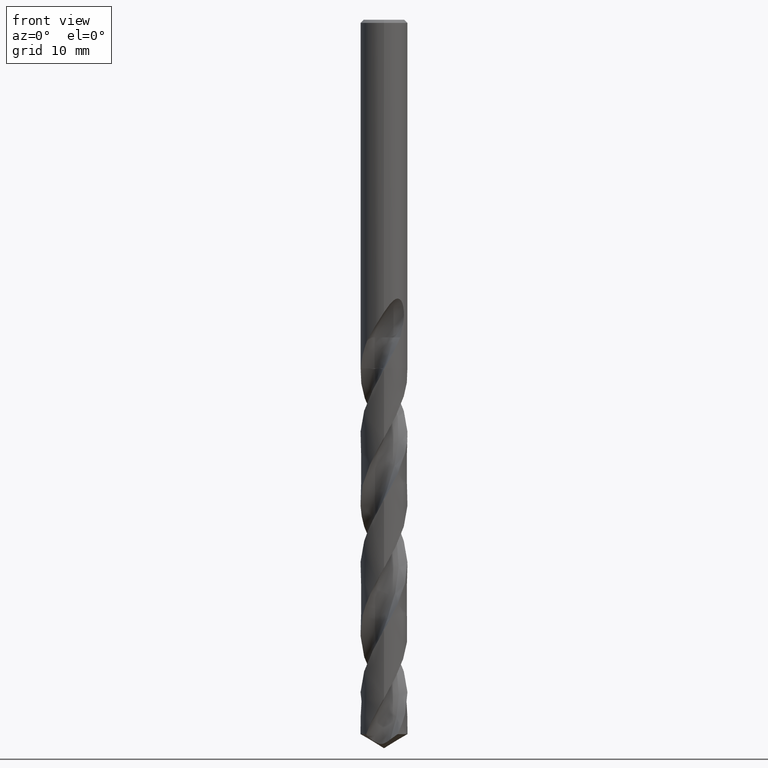
[diagram: clean part render]
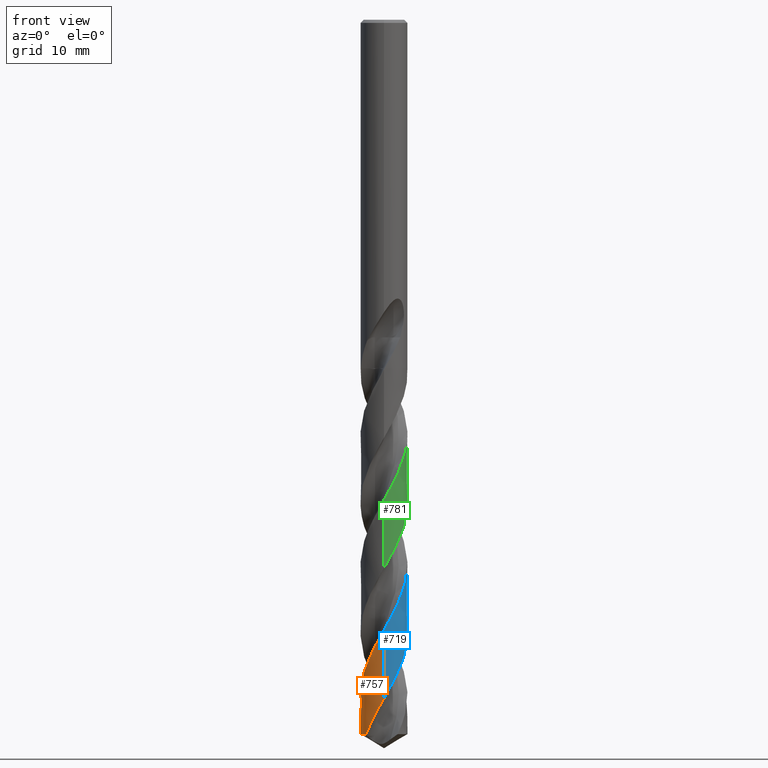
[diagram: same view with three faces highlighted in distinct colors, each labeled with its STEP entity id]
A machine part, front view with three faces highlighted in distinct colors.
Their STEP definitions:

[orange] entity #757 — the highlighted conical surface has half-angle 0 deg.
#291=VERTEX_POINT('',#814);
#301=EDGE_CURVE('',#321,#291,#825,.T.);
#321=VERTEX_POINT('',#847);
#349=VERTEX_POINT('',#878);
#363=EDGE_CURVE('',#707,#349,#892,.T.);
#367=EDGE_CURVE('',#291,#707,#896,.T.);
#423=EDGE_CURVE('',#321,#349,#957,.T.);
#707=VERTEX_POINT('',#1267);
#757=ADVANCED_FACE('',(#1320),#1321,.T.);
#814=CARTESIAN_POINT('',(1.2618426369891E-014,-2.99999024545571,-86.6422978092663));
#825=B_SPLINE_CURVE_WITH_KNOTS('',3,(#1593,#1594,#1595,#1596,#1597,#1598,#1599,#1600,#1601,#1602,#1603,#1604,#1605,#1606,#1607,#1608,#1609,#1610,#1611,#1612,#1613,#1614,#1615,#1616,#1617,#1618,#1619,#1620,#1621,#1622,#1623,#1624,#1625,#1626,#1627,#1628,#1629,#1630,#1631,#1632,#1633,#1634,#1635,#1636,#1637,#1638,#1639,#1640,#1641,#1642,#1643,#1644,#1645,#1646,#1647,#1648,#1649,#1650,#1651,#1652,#1653,#1654,#1655,#1656,#1657,#1658,#1659,#1660,#1661,#1662,#1663,#1664,#1665,#1666,#1667,#1668,#1669,#1670,#1671,#1672,#1673,#1674,#1675,#1676,#1677,#1678,#1679,#1680,#1681,#1682,#1683,#1684,#1685,#1686,#1687,#1688,#1689,#1690,#1691,#1692,#1693,#1694,#1695,#1696,#1697,#1698,#1699,#1700,#1701,#1702,#1703,#1704,#1705,#1706,#1707,#1708,#1709,#1710,#1711,#1712,#1713,#1714,#1715,#1716,#1717,#1718,#1719,#1720,#1721,#1722,#1723,#1724,#1725,#1726),.UNSPECIFIED.,.F.,.F.,(4,2,2,2,2,2,2,2,2,2,2,2,2,2,2,2,2,2,2,2,2,2,2,2,2,2,2,2,2,2,2,2,2,2,2,2,2,2,2,2,2,2,2,2,2,2,2,2,2,2,2,2,2,2,2,2,2,2,2,2,2,2,2,2,2,2,4),(0.0,3.02287721296994,4.21114467021748,5.40240542066158,5.63296285372694,6.56440019589008,7.03474323955983,7.96315386712662,8.90089101398831,9.82895467513808,10.7660359664793,11.6950607056237,12.631945266915,13.5608758300139,14.5002427450908,15.4360616190623,16.6231814625273,16.8760876727705,17.8238277513194,18.3510460297783,18.9392733809753,19.8728332224421,20.8111572759699,21.7456357262974,22.2158961574194,22.6786553579531,23.6122961418892,24.0824937946697,24.5458263259938,25.4793670431507,25.9495354147065,26.4130872779721,27.5339568556651,28.7198058053208,29.8415531454188,30.0906759770693,31.0059853105386,31.5394365860536,32.1272591931828,33.0610297525395,33.9991628109772,35.1830137693833,35.7756897684473,36.6661043010927,37.0818333460252,37.6751033829964,38.6422797246763,39.8384259271219,40.778204453477,41.0130611872121,41.4784119618527,42.4147223439251,42.886658241528,43.3526864069196,44.2893694783272,44.7615495460575,45.2280111571871,46.1649001621193,46.6374993824772,47.0738093275252,48.7124889861513,49.0209012430013,50.186497850839,51.0617569269761,52.3795618912654,53.0374232562179,53.6981954485594),.UNSPECIFIED.);
#847=CARTESIAN_POINT('',(-2.2745125000903,-1.95616790867578,-91.1974181429173));
#878=CARTESIAN_POINT('',(-1.75616763038386,2.4322572343385,-91.1974181429173));
#892=B_SPLINE_CURVE_WITH_KNOTS('',3,(#2438,#2439,#2440,#2441,#2442,#2443,#2444,#2445,#2446,#2447,#2448,#2449,#2450,#2451,#2452,#2453,#2454,#2455,#2456,#2457,#2458,#2459,#2460,#2461,#2462,#2463,#2464,#2465,#2466,#2467,#2468,#2469,#2470,#2471,#2472,#2473,#2474,#2475,#2476,#2477,#2478,#2479,#2480,#2481,#2482,#2483,#2484,#2485,#2486,#2487,#2488,#2489,#2490,#2491,#2492,#2493,#2494,#2495,#2496,#2497,#2498,#2499,#2500,#2501,#2502,#2503,#2504,#2505,#2506,#2507,#2508,#2509,#2510,#2511,#2512,#2513,#2514,#2515,#2516,#2517,#2518,#2519,#2520,#2521,#2522,#2523,#2524,#2525,#2526,#2527,#2528,#2529,#2530,#2531,#2532,#2533,#2534,#2535,#2536,#2537,#2538,#2539,#2540,#2541,#2542,#2543,#2544,#2545,#2546,#2547,#2548,#2549),.UNSPECIFIED.,.F.,.F.,(4,2,2,2,2,2,2,2,2,2,2,2,2,2,2,2,2,2,2,2,2,2,2,2,2,2,2,2,2,2,2,2,2,2,2,2,2,2,2,2,2,2,2,2,2,2,2,2,2,2,2,2,2,2,2,4),(0.0,0.572494951152707,1.82359099831798,2.42255770686829,3.60222100303684,4.78284834429973,5.07257895236111,6.43743892157829,7.27309732185476,8.44766006449398,8.80126584029502,10.0867639013919,10.7114238461187,12.0609049505879,12.9256424530708,14.0990840418294,14.4568972499805,15.7524060030587,16.3768444194908,17.7456139895091,18.569437081234,19.8211434650161,20.1249415870753,21.4607621806897,22.3509296458092,23.5237657369338,23.8825393806491,25.1924762545247,26.1441114138911,27.3190172650189,27.6638680734478,28.9837452938752,29.9097926997169,31.0848422913952,31.4282569765491,32.7359192072244,33.6884426389131,34.8641982923497,35.2033986836679,36.5301467078713,37.4343337735823,38.6080877867294,38.9582932874796,40.2783048428231,41.1973656489372,42.370246603382,42.7242071821576,44.0547000523769,44.9520049179204,46.0193016687821,46.8324724202903,47.6769222201255,48.4202173883978,49.7105220906753,50.687798315683,53.6638566153916),.UNSPECIFIED.);
#896=LINE('',#2556,#2557);
#957=CIRCLE('',#2907,3.0);
#1267=CARTESIAN_POINT('',(-4.91099749483942E-014,-2.99997147817592,-77.8784626881378));
#1320=FACE_OUTER_BOUND('',#10861,.T.);
#1321=CONICAL_SURFACE('',#10862,2.99995,2.14144601515245E-006);
#1593=CARTESIAN_POINT('',(-2.2745125000903,-1.95616790867578,-91.1974181429173));
#1594=CARTESIAN_POINT('',(-1.95178560596143,-2.33141213640575,-90.3197230087452));
#1595=CARTESIAN_POINT('',(-1.53969526783145,-2.62238588949372,-89.4596208159763));
#1596=CARTESIAN_POINT('',(-0.892558034563966,-2.87081177026189,-88.2378946293295));
#1597=CARTESIAN_POINT('',(-0.703657284085744,-2.92285292961938,-87.8920142145285));
#1598=CARTESIAN_POINT('',(-0.317758190417511,-2.98955123881705,-87.2016638900008));
#1599=CARTESIAN_POINT('',(-0.122025472159106,-3.00387620638499,-86.8583939374221));
#1600=CARTESIAN_POINT('',(0.111235675559772,-2.99816563050771,-86.4455591549712));
#1601=CARTESIAN_POINT('',(0.1490255622857,-2.99652575046484,-86.3785616721402));
#1602=CARTESIAN_POINT('',(0.339714468065122,-2.98462442749514,-86.0407150511399));
#1603=CARTESIAN_POINT('',(0.491818072927911,-2.96338232213848,-85.77109820719));
#1604=CARTESIAN_POINT('',(0.717611327020993,-2.91392760903974,-85.3639747563611));
#1605=CARTESIAN_POINT('',(0.792641346692021,-2.89441518264631,-85.2274930839328));
#1606=CARTESIAN_POINT('',(1.01310531374222,-2.82787885764705,-84.8210452248151));
#1607=CARTESIAN_POINT('',(1.15591881506762,-2.77257917261038,-84.550392715063));
#1608=CARTESIAN_POINT('',(1.43349338328039,-2.63986863531309,-84.0080459707319));
#1609=CARTESIAN_POINT('',(1.56754598463146,-2.56252965061124,-83.7366688610894));
#1610=CARTESIAN_POINT('',(1.82110034047704,-2.38890259090467,-83.1942947418631));
#1611=CARTESIAN_POINT('',(1.94047114784917,-2.29300815854351,-82.9236039126752));
#1612=CARTESIAN_POINT('',(2.16482255188089,-2.08262056047796,-82.3813469425078));
#1613=CARTESIAN_POINT('',(2.26916900063692,-1.96840028833672,-82.1100627124344));
#1614=CARTESIAN_POINT('',(2.45846001470462,-1.72606106236026,-81.5674514232199));
#1615=CARTESIAN_POINT('',(2.54333611945071,-1.5983728439718,-81.2964404579847));
#1616=CARTESIAN_POINT('',(2.69359374226667,-1.3297740964844,-80.7538414594659));
#1617=CARTESIAN_POINT('',(2.758480575797,-1.18932467537036,-80.4825526526441));
#1618=CARTESIAN_POINT('',(2.86555938114127,-0.901036932518029,-79.9399033574441));
#1619=CARTESIAN_POINT('',(2.90780602106788,-0.753654816602461,-79.6688318523229));
#1620=CARTESIAN_POINT('',(2.9698073224346,-0.451773687279588,-79.1254221626251));
#1621=CARTESIAN_POINT('',(2.98916713117835,-0.297836186707623,-78.8533697339948));
#1622=CARTESIAN_POINT('',(3.00391716761112,0.0109694976118981,-78.3079179353158));
#1623=CARTESIAN_POINT('',(2.99938551361731,0.165388839251145,-78.0348147122006));
#1624=CARTESIAN_POINT('',(2.9621532017061,0.513641826925592,-77.4172678386263));
#1625=CARTESIAN_POINT('',(2.92233379282429,0.705672109264574,-77.07426249514));
#1626=CARTESIAN_POINT('',(2.85182846225858,0.931998320202102,-76.6551310915076));
#1627=CARTESIAN_POINT('',(2.83863689581399,0.971433552678967,-76.5814669048239));
#1628=CARTESIAN_POINT('',(2.77211080992551,1.15737155345235,-76.2321594885449));
#1629=CARTESIAN_POINT('',(2.70816348347563,1.3000402958253,-75.9576977722559));
#1630=CARTESIAN_POINT('',(2.59157344078178,1.51364198393976,-75.5290847557303));
#1631=CARTESIAN_POINT('',(2.54663624264424,1.58807391969179,-75.3760542311678));
#1632=CARTESIAN_POINT('',(2.44496754745683,1.74106577119609,-75.051720775165));
#1633=CARTESIAN_POINT('',(2.38753937047548,1.81901669528032,-74.880251694196));
#1634=CARTESIAN_POINT('',(2.2293785758234,2.01327374978109,-74.4378025325311));
#1635=CARTESIAN_POINT('',(2.12326101796361,2.12491011580457,-74.1675793937668));
#1636=CARTESIAN_POINT('',(1.89401390523807,2.33161471808919,-73.6237306284721));
#1637=CARTESIAN_POINT('',(1.77137008897761,2.42607379171058,-73.3504067249925));
#1638=CARTESIAN_POINT('',(1.51360615781109,2.594683147514,-72.8064040898197));
#1639=CARTESIAN_POINT('',(1.3786119272195,2.66887460248963,-72.5361649192608));
#1640=CARTESIAN_POINT('',(1.16781944431896,2.76440864902976,-72.1284085074098));
#1641=CARTESIAN_POINT('',(1.09612249640248,2.79360757885731,-71.9920124368212));
#1642=CARTESIAN_POINT('',(0.951964906723855,2.84592657701403,-71.7209800556707));
#1643=CARTESIAN_POINT('',(0.879560781135041,2.86913142232721,-71.5862955311079));
#1644=CARTESIAN_POINT('',(0.658314927900113,2.93086163148494,-71.1805028352192));
#1645=CARTESIAN_POINT('',(0.507301876045134,2.96075387813846,-70.9103928649009));
#1646=CARTESIAN_POINT('',(0.277544677579586,2.98809452079875,-70.5027593902531));
#1647=CARTESIAN_POINT('',(0.200347626675581,2.99425667395209,-70.3663384393298));
#1648=CARTESIAN_POINT('',(0.0469469367617418,3.00055517496339,-70.0950797481356));
#1649=CARTESIAN_POINT('',(-0.0292113364282269,3.00078051013478,-69.960189953183));
#1650=CARTESIAN_POINT('',(-0.258867501057007,2.99270697457535,-69.5542257970037));
#1651=CARTESIAN_POINT('',(-0.411849499811561,2.97552987969138,-69.2841195090557));
#1652=CARTESIAN_POINT('',(-0.639121137469132,2.93210569263099,-68.8764905102742));
#1653=CARTESIAN_POINT('',(-0.714571291446191,2.91463204601932,-68.7400670223538));
#1654=CARTESIAN_POINT('',(-0.86274261757115,2.87422974751857,-68.4687324643843));
#1655=CARTESIAN_POINT('',(-0.935433305411801,2.85140008415554,-68.3337628213733));
#1656=CARTESIAN_POINT('',(-1.18087611709063,2.76391230695421,-67.8733368026908));
#1657=CARTESIAN_POINT('',(-1.34855780949059,2.686107873499,-67.5496701236268));
#1658=CARTESIAN_POINT('',(-1.67701095245331,2.49509041033969,-66.8798476253014));
#1659=CARTESIAN_POINT('',(-1.83581061075107,2.38068358405796,-66.5344468040452));
#1660=CARTESIAN_POINT('',(-2.12115737197942,2.12944182089693,-65.8644043577988));
#1661=CARTESIAN_POINT('',(-2.2480919734588,1.99492239023331,-65.540613908766));
#1662=CARTESIAN_POINT('',(-2.38696561361708,1.81761807671336,-65.1422306511599));
#1663=CARTESIAN_POINT('',(-2.41152418429163,1.78490746535764,-65.0697770922771));
#1664=CARTESIAN_POINT('',(-2.52336186488482,1.62940893067432,-64.7310992338156));
#1665=CARTESIAN_POINT('',(-2.60206391421853,1.50057217018937,-64.4660242630509));
#1666=CARTESIAN_POINT('',(-2.71089402009682,1.28780748134161,-64.0450963671035));
#1667=CARTESIAN_POINT('',(-2.74746147130461,1.20781536304006,-63.8902865681784));
#1668=CARTESIAN_POINT('',(-2.81677535348296,1.03671952916278,-63.5643054270893));
#1669=CARTESIAN_POINT('',(-2.84871986076667,0.945410349017062,-63.3929815577014));
#1670=CARTESIAN_POINT('',(-2.91990719162781,0.705269659902636,-62.9506175031248));
#1671=CARTESIAN_POINT('',(-2.95223757784712,0.55464656002544,-62.6803509129344));
#1672=CARTESIAN_POINT('',(-2.99360392363824,0.24877722010194,-62.1365155685419));
#1673=CARTESIAN_POINT('',(-3.00242330329185,0.0942720127808011,-61.8632341178398));
#1674=CARTESIAN_POINT('',(-2.9954411913862,-0.254682388327446,-61.2468497150017));
#1675=CARTESIAN_POINT('',(-2.97260220644448,-0.448562174726724,-60.9053626551698));
#1676=CARTESIAN_POINT('',(-2.91033034513717,-0.734231438428128,-60.3895472033861));
#1677=CARTESIAN_POINT('',(-2.88494563077882,-0.828342904621943,-60.2170348618131));
#1678=CARTESIAN_POINT('',(-2.81022520630349,-1.0599932963866,-59.7867431917635));
#1679=CARTESIAN_POINT('',(-2.75520726010955,-1.19578224291091,-59.529455529466));
#1680=CARTESIAN_POINT('',(-2.66011842258074,-1.38853817873677,-59.1508794721567));
#1681=CARTESIAN_POINT('',(-2.62778176771597,-1.4487988518771,-59.0304665566483));
#1682=CARTESIAN_POINT('',(-2.54442895160995,-1.59215938391091,-58.7378995617503));
#1683=CARTESIAN_POINT('',(-2.49140099012613,-1.67390667813199,-58.5654503968117));
#1684=CARTESIAN_POINT('',(-2.34190938703096,-1.8815370899159,-58.1132689732915));
#1685=CARTESIAN_POINT('',(-2.23909559173539,-2.00281973332997,-57.8343269380421));
#1686=CARTESIAN_POINT('',(-1.98838117880239,-2.25489389930031,-57.2080241754698));
#1687=CARTESIAN_POINT('',(-1.8365134795006,-2.38019535406246,-56.8607409717002));
#1688=CARTESIAN_POINT('',(-1.54552685937294,-2.5757902729414,-56.2422478028497));
#1689=CARTESIAN_POINT('',(-1.41104432970709,-2.65184975139105,-55.9713097061598));
#1690=CARTESIAN_POINT('',(-1.23636700585574,-2.73357392512068,-55.6312303056668));
#1691=CARTESIAN_POINT('',(-1.20115353787944,-2.74922809379139,-55.5632399056382));
#1692=CARTESIAN_POINT('',(-1.09536941306201,-2.79383729842846,-55.3604292782384));
#1693=CARTESIAN_POINT('',(-1.02404285911378,-2.82076065033282,-55.2253783474635));
#1694=CARTESIAN_POINT('',(-0.806189827659885,-2.89363755091523,-54.8194365550382));
#1695=CARTESIAN_POINT('',(-0.656990418962257,-2.93113405943032,-54.5494698968214));
#1696=CARTESIAN_POINT('',(-0.428976840038243,-2.97010306235834,-54.1419790453732));
#1697=CARTESIAN_POINT('',(-0.352162125999598,-2.98018282310611,-54.0055334566882));
#1698=CARTESIAN_POINT('',(-0.199044177817516,-2.99428402585149,-53.7339510010614));
#1699=CARTESIAN_POINT('',(-0.122820126307501,-2.99837613456775,-53.5987485767403));
#1700=CARTESIAN_POINT('',(0.106920711466727,-3.00193619265881,-53.1927022686926));
#1701=CARTESIAN_POINT('',(0.260454172553408,-2.99254426891075,-52.9227631218167));
#1702=CARTESIAN_POINT('',(0.489559375324705,-2.9607168490958,-52.5152992095199));
#1703=CARTESIAN_POINT('',(0.565826373211781,-2.94708802338331,-52.3788523579234));
#1704=CARTESIAN_POINT('',(0.716071963014651,-2.91420326030498,-52.1072119287157));
#1705=CARTESIAN_POINT('',(0.789987901155131,-2.89503755193183,-51.9719473415658));
#1706=CARTESIAN_POINT('',(1.00993655652582,-2.8289621307909,-51.5659907788772));
#1707=CARTESIAN_POINT('',(1.15335156500594,-2.7736066484394,-51.296174634524));
#1708=CARTESIAN_POINT('',(1.36204795874819,-2.67400809222265,-50.8888365429373));
#1709=CARTESIAN_POINT('',(1.43063920154692,-2.63794272559087,-50.7523740830075));
#1710=CARTESIAN_POINT('',(1.55960912265636,-2.56363058379802,-50.4895487740413));
#1711=CARTESIAN_POINT('',(1.62014564800459,-2.52580431448955,-50.3631468698505));
#1712=CARTESIAN_POINT('',(1.90113947730164,-2.33599024989963,-49.7636003759024));
#1713=CARTESIAN_POINT('',(2.10185948794459,-2.15714021659507,-49.2962535003256));
#1714=CARTESIAN_POINT('',(2.30897078953441,-1.91589267062581,-48.7338128860584));
#1715=CARTESIAN_POINT('',(2.34080271099582,-1.87687047234585,-48.6446177852835));
#1716=CARTESIAN_POINT('',(2.48849633934738,-1.68618250427258,-48.218297539531));
#1717=CARTESIAN_POINT('',(2.59072877494663,-1.52448953310956,-47.8834480187254));
#1718=CARTESIAN_POINT('',(2.74170985233033,-1.22598710594778,-47.2936554824876));
#1719=CARTESIAN_POINT('',(2.79712617915742,-1.09363535583101,-47.0398871786325));
#1720=CARTESIAN_POINT('',(2.9117327242361,-0.753494945270664,-46.4061964248808));
#1721=CARTESIAN_POINT('',(2.95834236118653,-0.542327695635232,-46.0286662701702));
#1722=CARTESIAN_POINT('',(2.99368502281006,-0.221015618156673,-45.4579001447945));
#1723=CARTESIAN_POINT('',(2.99969363139984,-0.113415332898901,-45.2672851045591));
#1724=CARTESIAN_POINT('',(3.00009912307629,0.102607447198567,-44.8861661180025));
#1725=CARTESIAN_POINT('',(2.99444439845376,0.210809903223023,-44.6957485249234));
#1726=CARTESIAN_POINT('',(2.9829414791003,0.318528186484346,-44.5049284621469));
#2438=CARTESIAN_POINT('',(0.0649300444789005,-2.99919725219845,-44.5045353086641));
#2439=CARTESIAN_POINT('',(-0.0291366412246599,-3.00123407076454,-44.6705594900331));
#2440=CARTESIAN_POINT('',(-0.12326982780239,-2.99884489596037,-44.8363290979392));
#2441=CARTESIAN_POINT('',(-0.422342480712789,-2.97713948016446,-45.3651339047704));
#2442=CARTESIAN_POINT('',(-0.625365675342284,-2.94118751072104,-45.7271818577968));
#2443=CARTESIAN_POINT('',(-0.917659461616805,-2.85779771713864,-46.2637921775887));
#2444=CARTESIAN_POINT('',(-1.01093239046492,-2.82615213246614,-46.4374081822014));
#2445=CARTESIAN_POINT('',(-1.28286103031856,-2.71869569538977,-46.9532030020624));
#2446=CARTESIAN_POINT('',(-1.45583482405879,-2.63012345582889,-47.294294867902));
#2447=CARTESIAN_POINT('',(-1.78231989539191,-2.42082846209379,-47.9788950476781));
#2448=CARTESIAN_POINT('',(-1.93514694408967,-2.30050819022834,-48.3204451683174));
#2449=CARTESIAN_POINT('',(-2.1097194604502,-2.13326222749149,-48.746818008145));
#2450=CARTESIAN_POINT('',(-2.14331945865105,-2.09950107869454,-48.8308109317923));
#2451=CARTESIAN_POINT('',(-2.33050321317704,-1.90224454527102,-49.3107079115169));
#2452=CARTESIAN_POINT('',(-2.46621806011135,-1.7226729986545,-49.7056965205531));
#2453=CARTESIAN_POINT('',(-2.65071334930758,-1.41140883451902,-50.3438870202412));
#2454=CARTESIAN_POINT('',(-2.71254937251319,-1.28856935818739,-50.5859125924135));
#2455=CARTESIAN_POINT('',(-2.84049915580385,-0.984024161167544,-51.1690503949402));
#2456=CARTESIAN_POINT('',(-2.89793967383443,-0.799214117447382,-51.5089733148328));
#2457=CARTESIAN_POINT('',(-2.94904809707126,-0.553165769206899,-51.9521699091078));
#2458=CARTESIAN_POINT('',(-2.95921363076621,-0.495914011193925,-52.0546637877826));
#2459=CARTESIAN_POINT('',(-2.99859216089477,-0.229357345923392,-52.5301267056299));
#2460=CARTESIAN_POINT('',(-3.00730558662231,-0.0175771987422138,-52.9023940534889));
#2461=CARTESIAN_POINT('',(-2.98705835909521,0.295887532128459,-53.4564741177139));
#2462=CARTESIAN_POINT('',(-2.97517781658348,0.397969991871847,-53.637422060241));
#2463=CARTESIAN_POINT('',(-2.92117021068441,0.717988385267479,-54.2101344331919));
#2464=CARTESIAN_POINT('',(-2.8600867366357,0.932038849498033,-54.6008065789413));
#2465=CARTESIAN_POINT('',(-2.72201026226784,1.26902569431733,-55.2431286318788));
#2466=CARTESIAN_POINT('',(-2.65881339646229,1.39658668071223,-55.4935986790422));
#2467=CARTESIAN_POINT('',(-2.48916883332339,1.68546357370724,-56.0849952321074));
#2468=CARTESIAN_POINT('',(-2.37565103555231,1.84203419065038,-56.4246885554352));
#2469=CARTESIAN_POINT('',(-2.20885457833111,2.03075954112504,-56.8688918561097));
#2470=CARTESIAN_POINT('',(-2.16859865770184,2.07369276688763,-56.9726299539576));
#2471=CARTESIAN_POINT('',(-1.97689970523271,2.26645350791506,-57.4523360463122));
#2472=CARTESIAN_POINT('',(-1.81099002280168,2.40110317924891,-57.8275740341686));
#2473=CARTESIAN_POINT('',(-1.54601557329158,2.572929111683,-58.3846297932181));
#2474=CARTESIAN_POINT('',(-1.45704018690636,2.6243395199188,-58.5655601839334));
#2475=CARTESIAN_POINT('',(-1.16521264156685,2.77354047965519,-59.1439533359828));
#2476=CARTESIAN_POINT('',(-0.953852859907622,2.85315042056484,-59.5402505772832));
#2477=CARTESIAN_POINT('',(-0.60414258530806,2.94159524330468,-60.1764519648225));
#2478=CARTESIAN_POINT('',(-0.470691538406343,2.9658722587993,-60.4151663210912));
#2479=CARTESIAN_POINT('',(-0.131611491717624,3.00410371483676,-61.0175535291758));
#2480=CARTESIAN_POINT('',(0.07478721717807,3.00606624906179,-61.3798661237693));
#2481=CARTESIAN_POINT('',(0.329592375884945,2.98219546988546,-61.8312173321299));
#2482=CARTESIAN_POINT('',(0.379220756055649,2.97629164063114,-61.9193336273803));
#2483=CARTESIAN_POINT('',(0.646117585762435,2.93775929504757,-62.3951875451529));
#2484=CARTESIAN_POINT('',(0.85951623383102,2.88256422105627,-62.7820928167264));
#2485=CARTESIAN_POINT('',(1.20192212476286,2.75254048216521,-63.4280909315356));
#2486=CARTESIAN_POINT('',(1.33481154479157,2.69060389409985,-63.6859987151451));
#2487=CARTESIAN_POINT('',(1.63098685675344,2.52521834789315,-64.2848425258331));
#2488=CARTESIAN_POINT('',(1.78996950118741,2.41514263142592,-64.6245015801298));
#2489=CARTESIAN_POINT('',(1.98239927528981,2.25238601572317,-65.0689892064905));
#2490=CARTESIAN_POINT('',(2.02632950375136,2.21294766243534,-65.1730486414224));
#2491=CARTESIAN_POINT('',(2.22509157658897,2.02362811268092,-65.6574167129918));
#2492=CARTESIAN_POINT('',(2.36469209676005,1.85859496373513,-66.0369502024176));
#2493=CARTESIAN_POINT('',(2.57310897823362,1.55026420341439,-66.6933852220885));
#2494=CARTESIAN_POINT('',(2.65048684059792,1.41389599689442,-66.9690866266059));
#2495=CARTESIAN_POINT('',(2.79879391705493,1.09717113897504,-67.5864664162078));
#2496=CARTESIAN_POINT('',(2.86366559702519,0.914609472556321,-67.9267436480091));
#2497=CARTESIAN_POINT('',(2.92428076289659,0.671944834433028,-68.3678545137361));
#2498=CARTESIAN_POINT('',(2.93646632217647,0.616516224847198,-68.4678962273131));
#2499=CARTESIAN_POINT('',(2.98766336375222,0.347466573572886,-68.9511867363714));
#2500=CARTESIAN_POINT('',(3.00498362277942,0.130316883992322,-69.3336346271559));
#2501=CARTESIAN_POINT('',(2.99428670774442,-0.239174766666741,-69.9856270584615));
#2502=CARTESIAN_POINT('',(2.9782736656499,-0.390920317741019,-70.2539901142096));
#2503=CARTESIAN_POINT('',(2.91597996920501,-0.730859914502108,-70.864074236357));
#2504=CARTESIAN_POINT('',(2.86283783498367,-0.91723160677809,-71.2044408494906));
#2505=CARTESIAN_POINT('',(2.77141910561362,-1.14986100620558,-71.6452430035914));
#2506=CARTESIAN_POINT('',(2.74926645375104,-1.20186398961765,-71.7448830830616));
#2507=CARTESIAN_POINT('',(2.63577781920961,-1.44869898891654,-72.2242830631309));
#2508=CARTESIAN_POINT('',(2.52509765169663,-1.63400641548398,-72.6032770683854));
#2509=CARTESIAN_POINT('',(2.30113675844643,-1.93109388054646,-73.259512678173));
#2510=CARTESIAN_POINT('',(2.19710976206333,-2.04866705889346,-73.5355632978274));
#2511=CARTESIAN_POINT('',(1.94530447073938,-2.29193902131878,-74.1536353503978));
#2512=CARTESIAN_POINT('',(1.79347323994427,-2.41261402311136,-74.4942488902714));
#2513=CARTESIAN_POINT('',(1.58414779034927,-2.54821215973317,-74.9341000405229));
#2514=CARTESIAN_POINT('',(1.53645326581837,-2.57725040633156,-75.0325358607525));
#2515=CARTESIAN_POINT('',(1.2983948878025,-2.71323440064421,-75.5163289830665));
#2516=CARTESIAN_POINT('',(1.09749686415593,-2.80053879287956,-75.9008606449657));
#2517=CARTESIAN_POINT('',(0.746691875562108,-2.90936824230632,-76.5486930017829));
#2518=CARTESIAN_POINT('',(0.601472657632297,-2.94281807135951,-76.8108165115833));
#2519=CARTESIAN_POINT('',(0.263525652154476,-2.99460739998311,-77.4143627203616));
#2520=CARTESIAN_POINT('',(0.0701820611790125,-3.00537058534442,-77.7544753829313));
#2521=CARTESIAN_POINT('',(-0.180532953504696,-2.99509028206123,-78.1970107441959));
#2522=CARTESIAN_POINT('',(-0.238053139201869,-2.99106796806453,-78.2986509811825));
#2523=CARTESIAN_POINT('',(-0.511626877621456,-2.96399791716404,-78.7837537052531));
#2524=CARTESIAN_POINT('',(-0.724933438100048,-2.91917145616538,-79.1664059230928));
#2525=CARTESIAN_POINT('',(-1.07540436940216,-2.80468573311053,-79.8166992144269));
#2526=CARTESIAN_POINT('',(-1.21545054830457,-2.74689103721959,-80.0831509606207));
#2527=CARTESIAN_POINT('',(-1.52284319552375,-2.59192309667331,-80.6908585721534));
#2528=CARTESIAN_POINT('',(-1.6864650903918,-2.48857611631192,-81.0307800020635));
#2529=CARTESIAN_POINT('',(-1.885117359123,-2.33443896848564,-81.4742216538022));
#2530=CARTESIAN_POINT('',(-1.93010788909936,-2.29738008141194,-81.5769667005346));
#2531=CARTESIAN_POINT('',(-2.13891766039407,-2.11492002419382,-82.0662788857177));
#2532=CARTESIAN_POINT('',(-2.28761492686046,-1.95313074803259,-82.4520026513246));
#2533=CARTESIAN_POINT('',(-2.50489113953831,-1.6574845071621,-83.0991174021397));
#2534=CARTESIAN_POINT('',(-2.58345701926099,-1.53214196381586,-83.3593209783195));
#2535=CARTESIAN_POINT('',(-2.73452055356561,-1.24625849850778,-83.9301234436356));
#2536=CARTESIAN_POINT('',(-2.80281781480438,-1.08398466616004,-84.2396513338737));
#2537=CARTESIAN_POINT('',(-2.89744765214472,-0.789082831482513,-84.7858892189761));
#2538=CARTESIAN_POINT('',(-2.92976917687753,-0.659004288055409,-85.0217991499883));
#2539=CARTESIAN_POINT('',(-2.97772002435141,-0.390420709244251,-85.5034205968375));
#2540=CARTESIAN_POINT('',(-2.9926164751054,-0.252024140539999,-85.7485207164267));
#2541=CARTESIAN_POINT('',(-3.00247129026305,0.00926500309775301,-86.2097623497927));
#2542=CARTESIAN_POINT('',(-2.99959337306861,0.131730283463493,-86.4253084936739));
#2543=CARTESIAN_POINT('',(-2.97128602423955,0.465328479264512,-87.016150060269));
#2544=CARTESIAN_POINT('',(-2.93088728209945,0.67455434960631,-87.3902923988784));
#2545=CARTESIAN_POINT('',(-2.82159871956463,1.03172367690962,-88.0490502578602));
#2546=CARTESIAN_POINT('',(-2.76220224734156,1.18155694937316,-88.3324459305041));
#2547=CARTESIAN_POINT('',(-2.4746235249784,1.76526758890279,-89.4812454684652));
#2548=CARTESIAN_POINT('',(-2.15367170551044,2.14524427639289,-90.3329510086663));
#2549=CARTESIAN_POINT('',(-1.75616763038385,2.43225723433849,-91.1974181429173));
#2556=CARTESIAN_POINT('',(3.67852059694359E-016,-2.99995,-67.8487090714587));
#2557=VECTOR('',#11669,1.0);
#2907=AXIS2_PLACEMENT_3D('',#11742,#11743,#11744);
#10861=EDGE_LOOP('',(#12062,#12063,#12064,#12065));
#10862=AXIS2_PLACEMENT_3D('',#12066,#12067,#12068);
#11669=DIRECTION('',(-2.6224283965213E-022,2.14144601515082E-006,0.999999999997707));
#11742=CARTESIAN_POINT('',(0.0,0.0,-91.1974181429173));
#11743=DIRECTION('',(0.0,0.0,-1.0));
#11744=DIRECTION('',(0.0,1.0,0.0));
#12062=ORIENTED_EDGE('',*,*,#367,.T.);
#12063=ORIENTED_EDGE('',*,*,#363,.T.);
#12064=ORIENTED_EDGE('',*,*,#423,.F.);
#12065=ORIENTED_EDGE('',*,*,#301,.T.);
#12066=CARTESIAN_POINT('',(0.0,0.0,-67.8487090714587));
#12067=DIRECTION('',(0.0,-0.0,-1.0));
#12068=DIRECTION('',(0.0,1.0,0.0));

[blue] entity #719 — the highlighted conical surface has half-angle 0 deg.
#291=VERTEX_POINT('',#814);
#293=VERTEX_POINT('',#816);
#367=EDGE_CURVE('',#291,#707,#896,.T.);
#495=VERTEX_POINT('',#1035);
#637=EDGE_CURVE('',#291,#293,#1186,.T.);
#651=EDGE_CURVE('',#495,#293,#1203,.T.);
#707=VERTEX_POINT('',#1267);
#719=ADVANCED_FACE('',(#1279),#1280,.T.);
#733=EDGE_CURVE('',#495,#707,#1294,.T.);
#814=CARTESIAN_POINT('',(1.2618426369891E-014,-2.99999024545571,-86.6422978092663));
#816=CARTESIAN_POINT('',(-6.325664848634E-013,2.99995463239464,-70.0119177634088));
#896=LINE('',#2556,#2557);
#1035=CARTESIAN_POINT('',(1.73899521373353E-013,2.99993586654492,-61.248750453509));
#1186=B_SPLINE_CURVE_WITH_KNOTS('',3,(#8558,#8559,#8560,#8561,#8562,#8563,#8564,#8565,#8566,#8567,#8568,#8569,#8570,#8571,#8572,#8573,#8574,#8575,#8576,#8577,#8578,#8579,#8580,#8581,#8582,#8583,#8584,#8585,#8586,#8587,#8588,#8589,#8590,#8591,#8592,#8593,#8594,#8595,#8596,#8597,#8598,#8599,#8600,#8601,#8602,#8603,#8604,#8605,#8606,#8607,#8608,#8609,#8610,#8611,#8612,#8613,#8614,#8615,#8616,#8617,#8618,#8619,#8620,#8621,#8622,#8623,#8624,#8625,#8626,#8627,#8628,#8629,#8630,#8631,#8632,#8633,#8634,#8635,#8636,#8637,#8638,#8639,#8640,#8641,#8642,#8643,#8644,#8645,#8646,#8647,#8648,#8649,#8650,#8651,#8652,#8653,#8654,#8655,#8656,#8657,#8658,#8659,#8660,#8661,#8662,#8663,#8664,#8665,#8666,#8667,#8668,#8669,#8670,#8671,#8672,#8673,#8674,#8675,#8676,#8677,#8678,#8679,#8680,#8681,#8682,#8683,#8684,#8685,#8686,#8687,#8688,#8689,#8690,#8691),.UNSPECIFIED.,.F.,.F.,(4,2,2,2,2,2,2,2,2,2,2,2,2,2,2,2,2,2,2,2,2,2,2,2,2,2,2,2,2,2,2,2,2,2,2,2,2,2,2,2,2,2,2,2,2,2,2,2,2,2,2,2,2,2,2,2,2,2,2,2,2,2,2,2,2,2,4),(0.0,3.02287721296994,4.21114467021748,5.40240542066158,5.63296285372694,6.56440019589008,7.03474323955983,7.96315386712662,8.90089101398831,9.82895467513808,10.7660359664793,11.6950607056237,12.631945266915,13.5608758300139,14.5002427450908,15.4360616190623,16.6231814625273,16.8760876727705,17.8238277513194,18.3510460297783,18.9392733809753,19.8728332224421,20.8111572759699,21.7456357262974,22.2158961574194,22.6786553579531,23.6122961418892,24.0824937946697,24.5458263259938,25.4793670431507,25.9495354147065,26.4130872779721,27.5339568556651,28.7198058053208,29.8415531454188,30.0906759770693,31.0059853105386,31.5394365860536,32.1272591931828,33.0610297525395,33.9991628109772,35.1830137693833,35.7756897684473,36.6661043010927,37.0818333460252,37.6751033829964,38.6422797246763,39.8384259271219,40.778204453477,41.0130611872121,41.4784119618527,42.4147223439251,42.886658241528,43.3526864069196,44.2893694783272,44.7615495460575,45.2280111571871,46.1649001621193,46.6374993824772,47.0738093275252,48.7124889861513,49.0209012430013,50.186497850839,51.0617569269761,52.3795618912654,53.0374232562179,53.6981954485594),.UNSPECIFIED.);
#1203=LINE('',#9529,#9530);
#1267=CARTESIAN_POINT('',(-4.91099749483942E-014,-2.99997147817592,-77.8784626881378));
#1279=FACE_OUTER_BOUND('',#10497,.T.);
#1280=CONICAL_SURFACE('',#10498,2.99995,2.14144601515245E-006);
#1294=B_SPLINE_CURVE_WITH_KNOTS('',3,(#10705,#10706,#10707,#10708,#10709,#10710,#10711,#10712,#10713,#10714,#10715,#10716,#10717,#10718,#10719,#10720,#10721,#10722,#10723,#10724,#10725,#10726,#10727,#10728,#10729,#10730,#10731,#10732,#10733,#10734,#10735,#10736,#10737,#10738,#10739,#10740,#10741,#10742,#10743,#10744,#10745,#10746,#10747,#10748,#10749,#10750,#10751,#10752,#10753,#10754,#10755,#10756,#10757,#10758,#10759,#10760,#10761,#10762,#10763,#10764,#10765,#10766,#10767,#10768,#10769,#10770,#10771,#10772,#10773,#10774,#10775,#10776,#10777,#10778,#10779,#10780,#10781,#10782,#10783,#10784,#10785,#10786,#10787,#10788,#10789,#10790,#10791,#10792,#10793,#10794,#10795,#10796,#10797,#10798,#10799,#10800,#10801,#10802,#10803,#10804,#10805,#10806,#10807,#10808,#10809,#10810,#10811,#10812,#10813,#10814,#10815,#10816),.UNSPECIFIED.,.F.,.F.,(4,2,2,2,2,2,2,2,2,2,2,2,2,2,2,2,2,2,2,2,2,2,2,2,2,2,2,2,2,2,2,2,2,2,2,2,2,2,2,2,2,2,2,2,2,2,2,2,2,2,2,2,2,2,2,4),(0.0,0.572494951152707,1.82359099831798,2.42255770686829,3.60222100303684,4.78284834429973,5.07257895236111,6.43743892157829,7.27309732185476,8.44766006449398,8.80126584029502,10.0867639013919,10.7114238461187,12.0609049505879,12.9256424530708,14.0990840418294,14.4568972499805,15.7524060030587,16.3768444194908,17.7456139895091,18.569437081234,19.8211434650161,20.1249415870753,21.4607621806897,22.3509296458092,23.5237657369338,23.8825393806491,25.1924762545247,26.1441114138911,27.3190172650189,27.6638680734478,28.9837452938752,29.9097926997169,31.0848422913952,31.4282569765491,32.7359192072244,33.6884426389131,34.8641982923497,35.2033986836679,36.5301467078713,37.4343337735823,38.6080877867294,38.9582932874796,40.2783048428231,41.1973656489372,42.370246603382,42.7242071821576,44.0547000523769,44.9520049179204,46.0193016687821,46.8324724202903,47.6769222201255,48.4202173883978,49.7105220906753,50.687798315683,53.6638566153916),.UNSPECIFIED.);
#2556=CARTESIAN_POINT('',(3.67852059694359E-016,-2.99995,-67.8487090714587));
#2557=VECTOR('',#11669,1.0);
#8558=CARTESIAN_POINT('',(-2.2745125000903,-1.95616790867578,-91.1974181429173));
#8559=CARTESIAN_POINT('',(-1.95178560596143,-2.33141213640575,-90.3197230087452));
#8560=CARTESIAN_POINT('',(-1.53969526783145,-2.62238588949372,-89.4596208159763));
#8561=CARTESIAN_POINT('',(-0.892558034563966,-2.87081177026189,-88.2378946293295));
#8562=CARTESIAN_POINT('',(-0.703657284085744,-2.92285292961938,-87.8920142145285));
#8563=CARTESIAN_POINT('',(-0.317758190417511,-2.98955123881705,-87.2016638900008));
#8564=CARTESIAN_POINT('',(-0.122025472159106,-3.00387620638499,-86.8583939374221));
#8565=CARTESIAN_POINT('',(0.111235675559772,-2.99816563050771,-86.4455591549712));
#8566=CARTESIAN_POINT('',(0.1490255622857,-2.99652575046484,-86.3785616721402));
#8567=CARTESIAN_POINT('',(0.339714468065122,-2.98462442749514,-86.0407150511399));
#8568=CARTESIAN_POINT('',(0.491818072927911,-2.96338232213848,-85.77109820719));
#8569=CARTESIAN_POINT('',(0.717611327020993,-2.91392760903974,-85.3639747563611));
#8570=CARTESIAN_POINT('',(0.792641346692021,-2.89441518264631,-85.2274930839328));
#8571=CARTESIAN_POINT('',(1.01310531374222,-2.82787885764705,-84.8210452248151));
#8572=CARTESIAN_POINT('',(1.15591881506762,-2.77257917261038,-84.550392715063));
#8573=CARTESIAN_POINT('',(1.43349338328039,-2.63986863531309,-84.0080459707319));
#8574=CARTESIAN_POINT('',(1.56754598463146,-2.56252965061124,-83.7366688610894));
#8575=CARTESIAN_POINT('',(1.82110034047704,-2.38890259090467,-83.1942947418631));
#8576=CARTESIAN_POINT('',(1.94047114784917,-2.29300815854351,-82.9236039126752));
#8577=CARTESIAN_POINT('',(2.16482255188089,-2.08262056047796,-82.3813469425078));
#8578=CARTESIAN_POINT('',(2.26916900063692,-1.96840028833672,-82.1100627124344));
#8579=CARTESIAN_POINT('',(2.45846001470462,-1.72606106236026,-81.5674514232199));
#8580=CARTESIAN_POINT('',(2.54333611945071,-1.5983728439718,-81.2964404579847));
#8581=CARTESIAN_POINT('',(2.69359374226667,-1.3297740964844,-80.7538414594659));
#8582=CARTESIAN_POINT('',(2.758480575797,-1.18932467537036,-80.4825526526441));
#8583=CARTESIAN_POINT('',(2.86555938114127,-0.901036932518029,-79.9399033574441));
#8584=CARTESIAN_POINT('',(2.90780602106788,-0.753654816602461,-79.6688318523229));
#8585=CARTESIAN_POINT('',(2.9698073224346,-0.451773687279588,-79.1254221626251));
#8586=CARTESIAN_POINT('',(2.98916713117835,-0.297836186707623,-78.8533697339948));
#8587=CARTESIAN_POINT('',(3.00391716761112,0.0109694976118981,-78.3079179353158));
#8588=CARTESIAN_POINT('',(2.99938551361731,0.165388839251145,-78.0348147122006));
#8589=CARTESIAN_POINT('',(2.9621532017061,0.513641826925592,-77.4172678386263));
#8590=CARTESIAN_POINT('',(2.92233379282429,0.705672109264574,-77.07426249514));
#8591=CARTESIAN_POINT('',(2.85182846225858,0.931998320202102,-76.6551310915076));
#8592=CARTESIAN_POINT('',(2.83863689581399,0.971433552678967,-76.5814669048239));
#8593=CARTESIAN_POINT('',(2.77211080992551,1.15737155345235,-76.2321594885449));
#8594=CARTESIAN_POINT('',(2.70816348347563,1.3000402958253,-75.9576977722559));
#8595=CARTESIAN_POINT('',(2.59157344078178,1.51364198393976,-75.5290847557303));
#8596=CARTESIAN_POINT('',(2.54663624264424,1.58807391969179,-75.3760542311678));
#8597=CARTESIAN_POINT('',(2.44496754745683,1.74106577119609,-75.051720775165));
#8598=CARTESIAN_POINT('',(2.38753937047548,1.81901669528032,-74.880251694196));
#8599=CARTESIAN_POINT('',(2.2293785758234,2.01327374978109,-74.4378025325311));
#8600=CARTESIAN_POINT('',(2.12326101796361,2.12491011580457,-74.1675793937668));
#8601=CARTESIAN_POINT('',(1.89401390523807,2.33161471808919,-73.6237306284721));
#8602=CARTESIAN_POINT('',(1.77137008897761,2.42607379171058,-73.3504067249925));
#8603=CARTESIAN_POINT('',(1.51360615781109,2.594683147514,-72.8064040898197));
#8604=CARTESIAN_POINT('',(1.3786119272195,2.66887460248963,-72.5361649192608));
#8605=CARTESIAN_POINT('',(1.16781944431896,2.76440864902976,-72.1284085074098));
#8606=CARTESIAN_POINT('',(1.09612249640248,2.79360757885731,-71.9920124368212));
#8607=CARTESIAN_POINT('',(0.951964906723855,2.84592657701403,-71.7209800556707));
#8608=CARTESIAN_POINT('',(0.879560781135041,2.86913142232721,-71.5862955311079));
#8609=CARTESIAN_POINT('',(0.658314927900113,2.93086163148494,-71.1805028352192));
#8610=CARTESIAN_POINT('',(0.507301876045134,2.96075387813846,-70.9103928649009));
#8611=CARTESIAN_POINT('',(0.277544677579586,2.98809452079875,-70.5027593902531));
#8612=CARTESIAN_POINT('',(0.200347626675581,2.99425667395209,-70.3663384393298));
#8613=CARTESIAN_POINT('',(0.0469469367617418,3.00055517496339,-70.0950797481356));
#8614=CARTESIAN_POINT('',(-0.0292113364282269,3.00078051013478,-69.960189953183));
#8615=CARTESIAN_POINT('',(-0.258867501057007,2.99270697457535,-69.5542257970037));
#8616=CARTESIAN_POINT('',(-0.411849499811561,2.97552987969138,-69.2841195090557));
#8617=CARTESIAN_POINT('',(-0.639121137469132,2.93210569263099,-68.8764905102742));
#8618=CARTESIAN_POINT('',(-0.714571291446191,2.91463204601932,-68.7400670223538));
#8619=CARTESIAN_POINT('',(-0.86274261757115,2.87422974751857,-68.4687324643843));
#8620=CARTESIAN_POINT('',(-0.935433305411801,2.85140008415554,-68.3337628213733));
#8621=CARTESIAN_POINT('',(-1.18087611709063,2.76391230695421,-67.8733368026908));
#8622=CARTESIAN_POINT('',(-1.34855780949059,2.686107873499,-67.5496701236268));
#8623=CARTESIAN_POINT('',(-1.67701095245331,2.49509041033969,-66.8798476253014));
#8624=CARTESIAN_POINT('',(-1.83581061075107,2.38068358405796,-66.5344468040452));
#8625=CARTESIAN_POINT('',(-2.12115737197942,2.12944182089693,-65.8644043577988));
#8626=CARTESIAN_POINT('',(-2.2480919734588,1.99492239023331,-65.540613908766));
#8627=CARTESIAN_POINT('',(-2.38696561361708,1.81761807671336,-65.1422306511599));
#8628=CARTESIAN_POINT('',(-2.41152418429163,1.78490746535764,-65.0697770922771));
#8629=CARTESIAN_POINT('',(-2.52336186488482,1.62940893067432,-64.7310992338156));
#8630=CARTESIAN_POINT('',(-2.60206391421853,1.50057217018937,-64.4660242630509));
#8631=CARTESIAN_POINT('',(-2.71089402009682,1.28780748134161,-64.0450963671035));
#8632=CARTESIAN_POINT('',(-2.74746147130461,1.20781536304006,-63.8902865681784));
#8633=CARTESIAN_POINT('',(-2.81677535348296,1.03671952916278,-63.5643054270893));
#8634=CARTESIAN_POINT('',(-2.84871986076667,0.945410349017062,-63.3929815577014));
#8635=CARTESIAN_POINT('',(-2.91990719162781,0.705269659902636,-62.9506175031248));
#8636=CARTESIAN_POINT('',(-2.95223757784712,0.55464656002544,-62.6803509129344));
#8637=CARTESIAN_POINT('',(-2.99360392363824,0.24877722010194,-62.1365155685419));
#8638=CARTESIAN_POINT('',(-3.00242330329185,0.0942720127808011,-61.8632341178398));
#8639=CARTESIAN_POINT('',(-2.9954411913862,-0.254682388327446,-61.2468497150017));
#8640=CARTESIAN_POINT('',(-2.97260220644448,-0.448562174726724,-60.9053626551698));
#8641=CARTESIAN_POINT('',(-2.91033034513717,-0.734231438428128,-60.3895472033861));
#8642=CARTESIAN_POINT('',(-2.88494563077882,-0.828342904621943,-60.2170348618131));
#8643=CARTESIAN_POINT('',(-2.81022520630349,-1.0599932963866,-59.7867431917635));
#8644=CARTESIAN_POINT('',(-2.75520726010955,-1.19578224291091,-59.529455529466));
#8645=CARTESIAN_POINT('',(-2.66011842258074,-1.38853817873677,-59.1508794721567));
#8646=CARTESIAN_POINT('',(-2.62778176771597,-1.4487988518771,-59.0304665566483));
#8647=CARTESIAN_POINT('',(-2.54442895160995,-1.59215938391091,-58.7378995617503));
#8648=CARTESIAN_POINT('',(-2.49140099012613,-1.67390667813199,-58.5654503968117));
#8649=CARTESIAN_POINT('',(-2.34190938703096,-1.8815370899159,-58.1132689732915));
#8650=CARTESIAN_POINT('',(-2.23909559173539,-2.00281973332997,-57.8343269380421));
#8651=CARTESIAN_POINT('',(-1.98838117880239,-2.25489389930031,-57.2080241754698));
#8652=CARTESIAN_POINT('',(-1.8365134795006,-2.38019535406246,-56.8607409717002));
#8653=CARTESIAN_POINT('',(-1.54552685937294,-2.5757902729414,-56.2422478028497));
#8654=CARTESIAN_POINT('',(-1.41104432970709,-2.65184975139105,-55.9713097061598));
#8655=CARTESIAN_POINT('',(-1.23636700585574,-2.73357392512068,-55.6312303056668));
#8656=CARTESIAN_POINT('',(-1.20115353787944,-2.74922809379139,-55.5632399056382));
#8657=CARTESIAN_POINT('',(-1.09536941306201,-2.79383729842846,-55.3604292782384));
#8658=CARTESIAN_POINT('',(-1.02404285911378,-2.82076065033282,-55.2253783474635));
#8659=CARTESIAN_POINT('',(-0.806189827659885,-2.89363755091523,-54.8194365550382));
#8660=CARTESIAN_POINT('',(-0.656990418962257,-2.93113405943032,-54.5494698968214));
#8661=CARTESIAN_POINT('',(-0.428976840038243,-2.97010306235834,-54.1419790453732));
#8662=CARTESIAN_POINT('',(-0.352162125999598,-2.98018282310611,-54.0055334566882));
#8663=CARTESIAN_POINT('',(-0.199044177817516,-2.99428402585149,-53.7339510010614));
#8664=CARTESIAN_POINT('',(-0.122820126307501,-2.99837613456775,-53.5987485767403));
#8665=CARTESIAN_POINT('',(0.106920711466727,-3.00193619265881,-53.1927022686926));
#8666=CARTESIAN_POINT('',(0.260454172553408,-2.99254426891075,-52.9227631218167));
#8667=CARTESIAN_POINT('',(0.489559375324705,-2.9607168490958,-52.5152992095199));
#8668=CARTESIAN_POINT('',(0.565826373211781,-2.94708802338331,-52.3788523579234));
#8669=CARTESIAN_POINT('',(0.716071963014651,-2.91420326030498,-52.1072119287157));
#8670=CARTESIAN_POINT('',(0.789987901155131,-2.89503755193183,-51.9719473415658));
#8671=CARTESIAN_POINT('',(1.00993655652582,-2.8289621307909,-51.5659907788772));
#8672=CARTESIAN_POINT('',(1.15335156500594,-2.7736066484394,-51.296174634524));
#8673=CARTESIAN_POINT('',(1.36204795874819,-2.67400809222265,-50.8888365429373));
#8674=CARTESIAN_POINT('',(1.43063920154692,-2.63794272559087,-50.7523740830075));
#8675=CARTESIAN_POINT('',(1.55960912265636,-2.56363058379802,-50.4895487740413));
#8676=CARTESIAN_POINT('',(1.62014564800459,-2.52580431448955,-50.3631468698505));
#8677=CARTESIAN_POINT('',(1.90113947730164,-2.33599024989963,-49.7636003759024));
#8678=CARTESIAN_POINT('',(2.10185948794459,-2.15714021659507,-49.2962535003256));
#8679=CARTESIAN_POINT('',(2.30897078953441,-1.91589267062581,-48.7338128860584));
#8680=CARTESIAN_POINT('',(2.34080271099582,-1.87687047234585,-48.6446177852835));
#8681=CARTESIAN_POINT('',(2.48849633934738,-1.68618250427258,-48.218297539531));
#8682=CARTESIAN_POINT('',(2.59072877494663,-1.52448953310956,-47.8834480187254));
#8683=CARTESIAN_POINT('',(2.74170985233033,-1.22598710594778,-47.2936554824876));
#8684=CARTESIAN_POINT('',(2.79712617915742,-1.09363535583101,-47.0398871786325));
#8685=CARTESIAN_POINT('',(2.9117327242361,-0.753494945270664,-46.4061964248808));
#8686=CARTESIAN_POINT('',(2.95834236118653,-0.542327695635232,-46.0286662701702));
#8687=CARTESIAN_POINT('',(2.99368502281006,-0.221015618156673,-45.4579001447945));
#8688=CARTESIAN_POINT('',(2.99969363139984,-0.113415332898901,-45.2672851045591));
#8689=CARTESIAN_POINT('',(3.00009912307629,0.102607447198567,-44.8861661180025));
#8690=CARTESIAN_POINT('',(2.99444439845376,0.210809903223023,-44.6957485249234));
#8691=CARTESIAN_POINT('',(2.9829414791003,0.318528186484346,-44.5049284621469));
#9529=CARTESIAN_POINT('',(-3.66899506535529E-016,2.99995,-67.8487090714587));
#9530=VECTOR('',#11947,1.0);
#10497=EDGE_LOOP('',(#12031,#12032,#12033,#12034));
#10498=AXIS2_PLACEMENT_3D('',#12035,#12036,#12037);
#10705=CARTESIAN_POINT('',(0.0649300444789005,-2.99919725219845,-44.5045353086641));
#10706=CARTESIAN_POINT('',(-0.0291366412246599,-3.00123407076454,-44.6705594900331));
#10707=CARTESIAN_POINT('',(-0.12326982780239,-2.99884489596037,-44.8363290979392));
#10708=CARTESIAN_POINT('',(-0.422342480712789,-2.97713948016446,-45.3651339047704));
#10709=CARTESIAN_POINT('',(-0.625365675342284,-2.94118751072104,-45.7271818577968));
#10710=CARTESIAN_POINT('',(-0.917659461616805,-2.85779771713864,-46.2637921775887));
#10711=CARTESIAN_POINT('',(-1.01093239046492,-2.82615213246614,-46.4374081822014));
#10712=CARTESIAN_POINT('',(-1.28286103031856,-2.71869569538977,-46.9532030020624));
#10713=CARTESIAN_POINT('',(-1.45583482405879,-2.63012345582889,-47.294294867902));
#10714=CARTESIAN_POINT('',(-1.78231989539191,-2.42082846209379,-47.9788950476781));
#10715=CARTESIAN_POINT('',(-1.93514694408967,-2.30050819022834,-48.3204451683174));
#10716=CARTESIAN_POINT('',(-2.1097194604502,-2.13326222749149,-48.746818008145));
#10717=CARTESIAN_POINT('',(-2.14331945865105,-2.09950107869454,-48.8308109317923));
#10718=CARTESIAN_POINT('',(-2.33050321317704,-1.90224454527102,-49.3107079115169));
#10719=CARTESIAN_POINT('',(-2.46621806011135,-1.7226729986545,-49.7056965205531));
#10720=CARTESIAN_POINT('',(-2.65071334930758,-1.41140883451902,-50.3438870202412));
#10721=CARTESIAN_POINT('',(-2.71254937251319,-1.28856935818739,-50.5859125924135));
#10722=CARTESIAN_POINT('',(-2.84049915580385,-0.984024161167544,-51.1690503949402));
#10723=CARTESIAN_POINT('',(-2.89793967383443,-0.799214117447382,-51.5089733148328));
#10724=CARTESIAN_POINT('',(-2.94904809707126,-0.553165769206899,-51.9521699091078));
#10725=CARTESIAN_POINT('',(-2.95921363076621,-0.495914011193925,-52.0546637877826));
#10726=CARTESIAN_POINT('',(-2.99859216089477,-0.229357345923392,-52.5301267056299));
#10727=CARTESIAN_POINT('',(-3.00730558662231,-0.0175771987422138,-52.9023940534889));
#10728=CARTESIAN_POINT('',(-2.98705835909521,0.295887532128459,-53.4564741177139));
#10729=CARTESIAN_POINT('',(-2.97517781658348,0.397969991871847,-53.637422060241));
#10730=CARTESIAN_POINT('',(-2.92117021068441,0.717988385267479,-54.2101344331919));
#10731=CARTESIAN_POINT('',(-2.8600867366357,0.932038849498033,-54.6008065789413));
#10732=CARTESIAN_POINT('',(-2.72201026226784,1.26902569431733,-55.2431286318788));
#10733=CARTESIAN_POINT('',(-2.65881339646229,1.39658668071223,-55.4935986790422));
#10734=CARTESIAN_POINT('',(-2.48916883332339,1.68546357370724,-56.0849952321074));
#10735=CARTESIAN_POINT('',(-2.37565103555231,1.84203419065038,-56.4246885554352));
#10736=CARTESIAN_POINT('',(-2.20885457833111,2.03075954112504,-56.8688918561097));
#10737=CARTESIAN_POINT('',(-2.16859865770184,2.07369276688763,-56.9726299539576));
#10738=CARTESIAN_POINT('',(-1.97689970523271,2.26645350791506,-57.4523360463122));
#10739=CARTESIAN_POINT('',(-1.81099002280168,2.40110317924891,-57.8275740341686));
#10740=CARTESIAN_POINT('',(-1.54601557329158,2.572929111683,-58.3846297932181));
#10741=CARTESIAN_POINT('',(-1.45704018690636,2.6243395199188,-58.5655601839334));
#10742=CARTESIAN_POINT('',(-1.16521264156685,2.77354047965519,-59.1439533359828));
#10743=CARTESIAN_POINT('',(-0.953852859907622,2.85315042056484,-59.5402505772832));
#10744=CARTESIAN_POINT('',(-0.60414258530806,2.94159524330468,-60.1764519648225));
#10745=CARTESIAN_POINT('',(-0.470691538406343,2.9658722587993,-60.4151663210912));
#10746=CARTESIAN_POINT('',(-0.131611491717624,3.00410371483676,-61.0175535291758));
#10747=CARTESIAN_POINT('',(0.07478721717807,3.00606624906179,-61.3798661237693));
#10748=CARTESIAN_POINT('',(0.329592375884945,2.98219546988546,-61.8312173321299));
#10749=CARTESIAN_POINT('',(0.379220756055649,2.97629164063114,-61.9193336273803));
#10750=CARTESIAN_POINT('',(0.646117585762435,2.93775929504757,-62.3951875451529));
#10751=CARTESIAN_POINT('',(0.85951623383102,2.88256422105627,-62.7820928167264));
#10752=CARTESIAN_POINT('',(1.20192212476286,2.75254048216521,-63.4280909315356));
#10753=CARTESIAN_POINT('',(1.33481154479157,2.69060389409985,-63.6859987151451));
#10754=CARTESIAN_POINT('',(1.63098685675344,2.52521834789315,-64.2848425258331));
#10755=CARTESIAN_POINT('',(1.78996950118741,2.41514263142592,-64.6245015801298));
#10756=CARTESIAN_POINT('',(1.98239927528981,2.25238601572317,-65.0689892064905));
#10757=CARTESIAN_POINT('',(2.02632950375136,2.21294766243534,-65.1730486414224));
#10758=CARTESIAN_POINT('',(2.22509157658897,2.02362811268092,-65.6574167129918));
#10759=CARTESIAN_POINT('',(2.36469209676005,1.85859496373513,-66.0369502024176));
#10760=CARTESIAN_POINT('',(2.57310897823362,1.55026420341439,-66.6933852220885));
#10761=CARTESIAN_POINT('',(2.65048684059792,1.41389599689442,-66.9690866266059));
#10762=CARTESIAN_POINT('',(2.79879391705493,1.09717113897504,-67.5864664162078));
#10763=CARTESIAN_POINT('',(2.86366559702519,0.914609472556321,-67.9267436480091));
#10764=CARTESIAN_POINT('',(2.92428076289659,0.671944834433028,-68.3678545137361));
#10765=CARTESIAN_POINT('',(2.93646632217647,0.616516224847198,-68.4678962273131));
#10766=CARTESIAN_POINT('',(2.98766336375222,0.347466573572886,-68.9511867363714));
#10767=CARTESIAN_POINT('',(3.00498362277942,0.130316883992322,-69.3336346271559));
#10768=CARTESIAN_POINT('',(2.99428670774442,-0.239174766666741,-69.9856270584615));
#10769=CARTESIAN_POINT('',(2.9782736656499,-0.390920317741019,-70.2539901142096));
#10770=CARTESIAN_POINT('',(2.91597996920501,-0.730859914502108,-70.864074236357));
#10771=CARTESIAN_POINT('',(2.86283783498367,-0.91723160677809,-71.2044408494906));
#10772=CARTESIAN_POINT('',(2.77141910561362,-1.14986100620558,-71.6452430035914));
#10773=CARTESIAN_POINT('',(2.74926645375104,-1.20186398961765,-71.7448830830616));
#10774=CARTESIAN_POINT('',(2.63577781920961,-1.44869898891654,-72.2242830631309));
#10775=CARTESIAN_POINT('',(2.52509765169663,-1.63400641548398,-72.6032770683854));
#10776=CARTESIAN_POINT('',(2.30113675844643,-1.93109388054646,-73.259512678173));
#10777=CARTESIAN_POINT('',(2.19710976206333,-2.04866705889346,-73.5355632978274));
#10778=CARTESIAN_POINT('',(1.94530447073938,-2.29193902131878,-74.1536353503978));
#10779=CARTESIAN_POINT('',(1.79347323994427,-2.41261402311136,-74.4942488902714));
#10780=CARTESIAN_POINT('',(1.58414779034927,-2.54821215973317,-74.9341000405229));
#10781=CARTESIAN_POINT('',(1.53645326581837,-2.57725040633156,-75.0325358607525));
#10782=CARTESIAN_POINT('',(1.2983948878025,-2.71323440064421,-75.5163289830665));
#10783=CARTESIAN_POINT('',(1.09749686415593,-2.80053879287956,-75.9008606449657));
#10784=CARTESIAN_POINT('',(0.746691875562108,-2.90936824230632,-76.5486930017829));
#10785=CARTESIAN_POINT('',(0.601472657632297,-2.94281807135951,-76.8108165115833));
#10786=CARTESIAN_POINT('',(0.263525652154476,-2.99460739998311,-77.4143627203616));
#10787=CARTESIAN_POINT('',(0.0701820611790125,-3.00537058534442,-77.7544753829313));
#10788=CARTESIAN_POINT('',(-0.180532953504696,-2.99509028206123,-78.1970107441959));
#10789=CARTESIAN_POINT('',(-0.238053139201869,-2.99106796806453,-78.2986509811825));
#10790=CARTESIAN_POINT('',(-0.511626877621456,-2.96399791716404,-78.7837537052531));
#10791=CARTESIAN_POINT('',(-0.724933438100048,-2.91917145616538,-79.1664059230928));
#10792=CARTESIAN_POINT('',(-1.07540436940216,-2.80468573311053,-79.8166992144269));
#10793=CARTESIAN_POINT('',(-1.21545054830457,-2.74689103721959,-80.0831509606207));
#10794=CARTESIAN_POINT('',(-1.52284319552375,-2.59192309667331,-80.6908585721534));
#10795=CARTESIAN_POINT('',(-1.6864650903918,-2.48857611631192,-81.0307800020635));
#10796=CARTESIAN_POINT('',(-1.885117359123,-2.33443896848564,-81.4742216538022));
#10797=CARTESIAN_POINT('',(-1.93010788909936,-2.29738008141194,-81.5769667005346));
#10798=CARTESIAN_POINT('',(-2.13891766039407,-2.11492002419382,-82.0662788857177));
#10799=CARTESIAN_POINT('',(-2.28761492686046,-1.95313074803259,-82.4520026513246));
#10800=CARTESIAN_POINT('',(-2.50489113953831,-1.6574845071621,-83.0991174021397));
#10801=CARTESIAN_POINT('',(-2.58345701926099,-1.53214196381586,-83.3593209783195));
#10802=CARTESIAN_POINT('',(-2.73452055356561,-1.24625849850778,-83.9301234436356));
#10803=CARTESIAN_POINT('',(-2.80281781480438,-1.08398466616004,-84.2396513338737));
#10804=CARTESIAN_POINT('',(-2.89744765214472,-0.789082831482513,-84.7858892189761));
#10805=CARTESIAN_POINT('',(-2.92976917687753,-0.659004288055409,-85.0217991499883));
#10806=CARTESIAN_POINT('',(-2.97772002435141,-0.390420709244251,-85.5034205968375));
#10807=CARTESIAN_POINT('',(-2.9926164751054,-0.252024140539999,-85.7485207164267));
#10808=CARTESIAN_POINT('',(-3.00247129026305,0.00926500309775301,-86.2097623497927));
#10809=CARTESIAN_POINT('',(-2.99959337306861,0.131730283463493,-86.4253084936739));
#10810=CARTESIAN_POINT('',(-2.97128602423955,0.465328479264512,-87.016150060269));
#10811=CARTESIAN_POINT('',(-2.93088728209945,0.67455434960631,-87.3902923988784));
#10812=CARTESIAN_POINT('',(-2.82159871956463,1.03172367690962,-88.0490502578602));
#10813=CARTESIAN_POINT('',(-2.76220224734156,1.18155694937316,-88.3324459305041));
#10814=CARTESIAN_POINT('',(-2.4746235249784,1.76526758890279,-89.4812454684652));
#10815=CARTESIAN_POINT('',(-2.15367170551044,2.14524427639289,-90.3329510086663));
#10816=CARTESIAN_POINT('',(-1.75616763038385,2.43225723433849,-91.1974181429173));
#11669=DIRECTION('',(-2.6224283965213E-022,2.14144601515082E-006,0.999999999997707));
#11947=DIRECTION('',(-2.6224283965213E-022,2.14144601515082E-006,-0.999999999997707));
#12031=ORIENTED_EDGE('',*,*,#651,.F.);
#12032=ORIENTED_EDGE('',*,*,#733,.T.);
#12033=ORIENTED_EDGE('',*,*,#367,.F.);
#12034=ORIENTED_EDGE('',*,*,#637,.T.);
#12035=CARTESIAN_POINT('',(0.0,0.0,-67.8487090714587));
#12036=DIRECTION('',(0.0,-0.0,-1.0));
#12037=DIRECTION('',(0.0,1.0,0.0));

[green] entity #781 — the highlighted conical surface has half-angle 0 deg.
#327=EDGE_CURVE('',#567,#449,#853,.T.);
#355=EDGE_CURVE('',#567,#445,#884,.T.);
#445=VERTEX_POINT('',#981);
#449=VERTEX_POINT('',#985);
#567=VERTEX_POINT('',#1111);
#569=EDGE_CURVE('',#655,#445,#1113,.T.);
#655=VERTEX_POINT('',#1207);
#723=EDGE_CURVE('',#655,#449,#1284,.T.);
#781=ADVANCED_FACE('',(#1348),#1349,.T.);
#853=B_SPLINE_CURVE_WITH_KNOTS('',3,(#1799,#1800,#1801,#1802,#1803,#1804,#1805,#1806,#1807,#1808,#1809,#1810,#1811,#1812,#1813,#1814,#1815,#1816,#1817,#1818,#1819,#1820,#1821,#1822,#1823,#1824,#1825,#1826,#1827,#1828,#1829,#1830,#1831,#1832,#1833,#1834,#1835,#1836,#1837,#1838,#1839,#1840,#1841,#1842,#1843,#1844,#1845,#1846,#1847,#1848,#1849,#1850,#1851,#1852,#1853,#1854,#1855,#1856,#1857,#1858,#1859,#1860,#1861,#1862,#1863,#1864,#1865,#1866,#1867,#1868,#1869,#1870,#1871,#1872,#1873,#1874,#1875,#1876,#1877,#1878,#1879,#1880,#1881,#1882,#1883,#1884,#1885,#1886,#1887,#1888,#1889,#1890,#1891,#1892,#1893,#1894,#1895,#1896,#1897,#1898,#1899,#1900,#1901,#1902,#1903,#1904,#1905,#1906,#1907,#1908,#1909,#1910,#1911,#1912,#1913,#1914,#1915,#1916,#1917,#1918,#1919,#1920,#1921,#1922,#1923,#1924,#1925,#1926,#1927,#1928),.UNSPECIFIED.,.F.,.F.,(4,2,2,2,2,2,2,2,2,2,2,2,2,2,2,2,2,2,2,2,2,2,2,2,2,2,2,2,2,2,2,2,2,2,2,2,2,2,2,2,2,2,2,2,2,2,2,2,2,2,2,2,2,2,2,2,2,2,2,2,2,2,2,2,4),(0.0,3.02287721308186,3.96035503251826,4.89686697762241,5.83551648499087,6.77258362159715,7.71219575565281,8.64984330159205,9.59001128895867,10.5279406885881,11.1276705759869,11.1568325331997,12.85121806614,13.4005311617981,14.3422156641383,15.2827405210116,16.4695812143093,17.0610301762596,18.2194178325815,19.4054871811681,20.3472584959563,20.8124693230899,21.7483606031151,22.2199552201672,22.6854553278996,23.6213130118307,24.0932310622975,24.5596101600599,25.4961253110783,25.9683853533943,26.4353231057335,27.3530898775342,27.7908247414765,28.3844768243995,29.5224173753061,30.7144162674492,31.7951114705035,32.0514025402282,32.9882253765226,33.4616180490423,34.3971441103921,35.5936776538411,35.8470400437444,36.813282970395,37.2168214864337,37.8125237491826,38.7837224250146,39.9847754278381,40.9284157952355,41.8689841255479,42.8126206762945,43.2853842642113,43.3432051728048,45.102661006836,45.34678967894,46.2839217194995,46.7548844570402,47.6272270519839,48.3993855717625,49.7488307345827,50.7653187592066,50.9550034679283,52.3858833573958,53.1005719334983,53.8180536712004),.UNSPECIFIED.);
#884=LINE('',#2397,#2398);
#981=CARTESIAN_POINT('',(-1.75453786845729E-013,-2.99993586654492,-61.248750453509));
#985=CARTESIAN_POINT('',(3.19782398326155E-013,2.99991901970738,-53.3817122879224));
#1111=CARTESIAN_POINT('',(4.40234429258512E-015,-2.99995463239464,-70.0119177634111));
#1113=B_SPLINE_CURVE_WITH_KNOTS('',3,(#6408,#6409,#6410,#6411,#6412,#6413,#6414,#6415,#6416,#6417,#6418,#6419,#6420,#6421,#6422,#6423,#6424,#6425,#6426,#6427,#6428,#6429,#6430,#6431,#6432,#6433,#6434,#6435,#6436,#6437,#6438,#6439,#6440,#6441,#6442,#6443,#6444,#6445,#6446,#6447,#6448,#6449,#6450,#6451,#6452,#6453,#6454,#6455,#6456,#6457,#6458,#6459,#6460,#6461,#6462,#6463,#6464,#6465,#6466,#6467,#6468,#6469,#6470,#6471,#6472,#6473,#6474,#6475,#6476,#6477,#6478,#6479,#6480,#6481,#6482,#6483,#6484,#6485,#6486,#6487,#6488,#6489,#6490,#6491,#6492,#6493,#6494,#6495,#6496,#6497,#6498,#6499,#6500,#6501,#6502,#6503,#6504,#6505,#6506,#6507,#6508,#6509,#6510,#6511,#6512,#6513,#6514,#6515,#6516,#6517,#6518,#6519),.UNSPECIFIED.,.F.,.F.,(4,2,2,2,2,2,2,2,2,2,2,2,2,2,2,2,2,2,2,2,2,2,2,2,2,2,2,2,2,2,2,2,2,2,2,2,2,2,2,2,2,2,2,2,2,2,2,2,2,2,2,2,2,2,2,4),(0.0,0.572494951158947,1.82359099780544,2.42255770585194,3.60222100600977,4.78284834608599,5.07257895400081,6.43743896662307,7.27309726631694,8.44766000049982,8.80126579227505,10.0867637409892,10.7114236865127,12.0609044836649,12.9256425960565,14.0990841930642,14.4568973350308,15.7524062199249,16.3768446357501,17.7456146261023,18.56943700085,19.8211433847995,20.1249415379525,21.4607620633179,22.3509297042247,23.5237657938987,23.8825394218448,25.1924763815023,26.1441113458788,27.3190171899607,27.6638680252593,28.9837451173982,29.9097927988623,31.0848423998647,31.4282570425243,32.7359193778982,33.6884425473602,34.8641981882476,35.2033986360254,36.5301465694962,37.4343337722093,38.60808778833,38.9582932950154,40.2783048632536,41.1973655963923,42.3702465501988,42.7242071514487,44.0546999425372,44.9520049005276,46.0193016485695,46.8324724442076,47.6769222417737,48.4202174062024,49.7105221039015,50.6877983249832,53.6638566151624),.UNSPECIFIED.);
#1207=CARTESIAN_POINT('',(1.38049338884306E-014,2.99990025500108,-44.619078918365));
#1284=LINE('',#10511,#10512);
#1348=FACE_OUTER_BOUND('',#11276,.T.);
#1349=CONICAL_SURFACE('',#11277,2.99995,2.14144601515245E-006);
#1799=CARTESIAN_POINT('',(2.2745125000903,1.95616790867578,-91.1974181429173));
#1800=CARTESIAN_POINT('',(1.95178560594948,2.33141213641964,-90.3197230087127));
#1801=CARTESIAN_POINT('',(1.53969526781352,2.62238588950042,-89.4596208159426));
#1802=CARTESIAN_POINT('',(0.931097511382226,2.85601706678834,-88.3106530577247));
#1803=CARTESIAN_POINT('',(0.783150014824995,2.90006291115013,-88.0377890638834));
#1804=CARTESIAN_POINT('',(0.482144461053264,2.96499067400443,-87.4941618549172));
#1805=CARTESIAN_POINT('',(0.329362038257862,2.98583465615679,-87.2237050181808));
#1806=CARTESIAN_POINT('',(0.0213896138285834,3.00388613897926,-86.6800277885248));
#1807=CARTESIAN_POINT('',(-0.133068338008731,3.00099834445047,-86.4070449084059));
#1808=CARTESIAN_POINT('',(-0.43968471699686,2.9715801466153,-85.8632450253277));
#1809=CARTESIAN_POINT('',(-0.591593887115169,2.9451119622743,-85.5927707356359));
#1810=CARTESIAN_POINT('',(-0.890608227999833,2.86890343525246,-85.0489864224338));
#1811=CARTESIAN_POINT('',(-1.03698734165482,2.81928266625213,-84.7759167052253));
#1812=CARTESIAN_POINT('',(-1.32029908360515,2.69822191515405,-84.2320062473324));
#1813=CARTESIAN_POINT('',(-1.45702515746327,2.62692306447889,-83.9615380788006));
#1814=CARTESIAN_POINT('',(-1.71883519025161,2.46360985111927,-83.417759197222));
#1815=CARTESIAN_POINT('',(-1.84325620454679,2.37193388824289,-83.1446821707079));
#1816=CARTESIAN_POINT('',(-2.07640864156834,2.17073050481697,-82.6008834104953));
#1817=CARTESIAN_POINT('',(-2.18502526386937,2.06137681091695,-82.3305109680451));
#1818=CARTESIAN_POINT('',(-2.34865877562743,1.86905909458071,-81.8855570546473));
#1819=CARTESIAN_POINT('',(-2.4086336433842,1.79108696199378,-81.7122399120592));
#1820=CARTESIAN_POINT('',(-2.46730637497515,1.706545577968,-81.5300458261057));
#1821=CARTESIAN_POINT('',(-2.47001629750631,1.70262092832896,-81.521600489264));
#1822=CARTESIAN_POINT('',(-2.63001009935888,1.46972035249953,-81.0213749304485));
#1823=CARTESIAN_POINT('',(-2.75476394024141,1.22000494522912,-80.5364720700844));
#1824=CARTESIAN_POINT('',(-2.87213050196165,0.871115787606875,-79.8858809115425));
#1825=CARTESIAN_POINT('',(-2.89702930033027,0.784364357204177,-79.7260860902337));
#1826=CARTESIAN_POINT('',(-2.95393423032074,0.545968378351639,-79.2934113795762));
#1827=CARTESIAN_POINT('',(-2.97818640265174,0.392768056008636,-79.0213650942303));
#1828=CARTESIAN_POINT('',(-3.00278889951049,0.083986242086189,-78.4754414662104));
#1829=CARTESIAN_POINT('',(-3.00311333570185,-0.0708628174427442,-78.2018078562685));
#1830=CARTESIAN_POINT('',(-2.97690313625806,-0.419399338878531,-77.5848124594511));
#1831=CARTESIAN_POINT('',(-2.94336076738802,-0.611938891181777,-77.2429820540882));
#1832=CARTESIAN_POINT('',(-2.86546192053302,-0.893523524697835,-76.7273358127406));
#1833=CARTESIAN_POINT('',(-2.83505413338315,-0.985747159308769,-76.5553990335172));
#1834=CARTESIAN_POINT('',(-2.73204355897753,-1.25374182042338,-76.048164439692));
#1835=CARTESIAN_POINT('',(-2.64711190301958,-1.42436444388088,-75.7146178427525));
#1836=CARTESIAN_POINT('',(-2.44350554515629,-1.7512963526532,-75.0354530043056));
#1837=CARTESIAN_POINT('',(-2.32465120766532,-1.9062523410465,-74.6908274830685));
#1838=CARTESIAN_POINT('',(-2.08578395234481,-2.16177054747089,-74.0744708846069));
#1839=CARTESIAN_POINT('',(-1.97156309634302,-2.26640509288565,-73.802807441351));
#1840=CARTESIAN_POINT('',(-1.78982855115204,-2.40875718198725,-73.3950351012256));
#1841=CARTESIAN_POINT('',(-1.7280338499165,-2.45346493121259,-73.259944437733));
#1842=CARTESIAN_POINT('',(-1.53685607400775,-2.58096858111917,-72.8539128602437));
#1843=CARTESIAN_POINT('',(-1.4026793876286,-2.65629713790053,-72.5839010200494));
#1844=CARTESIAN_POINT('',(-1.19284381425951,-2.75370434839226,-72.1763646462731));
#1845=CARTESIAN_POINT('',(-1.12136918727045,-2.78357123749478,-72.0399276985271));
#1846=CARTESIAN_POINT('',(-0.977359568001541,-2.83731366145454,-71.7684140310624));
#1847=CARTESIAN_POINT('',(-0.904920697490647,-2.86123881720389,-71.6332707547562));
#1848=CARTESIAN_POINT('',(-0.68425049907574,-2.92490510642848,-71.2273471970121));
#1849=CARTESIAN_POINT('',(-0.533673120694579,-2.95610749769452,-70.9574674252475));
#1850=CARTESIAN_POINT('',(-0.304269395656125,-2.98549253652778,-70.5500635388284));
#1851=CARTESIAN_POINT('',(-0.227087665581058,-2.99234895550446,-70.4136085815676));
#1852=CARTESIAN_POINT('',(-0.0734219154433014,-3.00003117803527,-70.1419046286062));
#1853=CARTESIAN_POINT('',(0.002978756097943,-3.00092539628128,-70.0065861016054));
#1854=CARTESIAN_POINT('',(0.232663007704195,-2.99484829793298,-69.6005078388351));
#1855=CARTESIAN_POINT('',(0.385626400657382,-2.97903518851347,-69.3306286147431));
#1856=CARTESIAN_POINT('',(0.613175573922633,-2.93764205074593,-68.9232268146037));
#1857=CARTESIAN_POINT('',(0.688818206418001,-2.92082698015422,-68.7867705006107));
#1858=CARTESIAN_POINT('',(0.837649675731676,-2.88164988773134,-68.5150011077674));
#1859=CARTESIAN_POINT('',(0.910773517173175,-2.85937647617461,-68.3796131542933));
#1860=CARTESIAN_POINT('',(1.12480221918664,-2.7851507982595,-67.9791537206051));
#1861=CARTESIAN_POINT('',(1.26293920330941,-2.72531545421635,-67.7148690124231));
#1862=CARTESIAN_POINT('',(1.45972929478511,-2.62183882796388,-67.3232435965345));
#1863=CARTESIAN_POINT('',(1.5220122979423,-2.58617675136374,-67.1968696446394));
#1864=CARTESIAN_POINT('',(1.6655069730773,-2.49704386821325,-66.898745125407));
#1865=CARTESIAN_POINT('',(1.74545428805682,-2.44182305853632,-66.7267126796643));
#1866=CARTESIAN_POINT('',(1.97037700161525,-2.2697849477601,-66.2263811476834));
#1867=CARTESIAN_POINT('',(2.10744486115069,-2.14314826011247,-65.8996844907858));
#1868=CARTESIAN_POINT('',(2.36241354053423,-1.85924187689404,-65.2269465712565));
#1869=CARTESIAN_POINT('',(2.47833601115005,-1.70166101458358,-64.8817398404847));
#1870=CARTESIAN_POINT('',(2.66870805322163,-1.38166520681616,-64.2255777586477));
#1871=CARTESIAN_POINT('',(2.7454638512158,-1.22198854933661,-63.9152570021991));
#1872=CARTESIAN_POINT('',(2.82241192488957,-1.01754064088619,-63.5289396776088));
#1873=CARTESIAN_POINT('',(2.83632308195794,-0.978093761880287,-63.4548316124671));
#1874=CARTESIAN_POINT('',(2.89727876052817,-0.792988229167128,-63.1101212257267));
#1875=CARTESIAN_POINT('',(2.9340210431926,-0.643985075063178,-62.8406564978569));
#1876=CARTESIAN_POINT('',(2.97195866502327,-0.416062752415318,-62.4336940963815));
#1877=CARTESIAN_POINT('',(2.98171275666878,-0.33914104475534,-62.2972062205355));
#1878=CARTESIAN_POINT('',(3.00184284018195,-0.109505401638041,-61.8904329849351));
#1879=CARTESIAN_POINT('',(3.00352761923683,0.0437896650393541,-61.619458089149));
#1880=CARTESIAN_POINT('',(2.98063362844829,0.392221254724984,-61.0038498856494));
#1881=CARTESIAN_POINT('',(2.94867028083947,0.585798736026577,-60.6606812393119));
#1882=CARTESIAN_POINT('',(2.88750723757669,0.814627144252673,-60.2417503006698));
#1883=CARTESIAN_POINT('',(2.87600627463024,0.8543435682078,-60.1684918556082));
#1884=CARTESIAN_POINT('',(2.81663070155218,1.0445633556192,-59.8160401848629));
#1885=CARTESIAN_POINT('',(2.75770242573491,1.19153048815941,-59.5381212505879));
#1886=CARTESIAN_POINT('',(2.65792666235088,1.39261892860612,-59.1427232158621));
#1887=CARTESIAN_POINT('',(2.62659975953726,1.45083530415149,-59.0263125375624));
#1888=CARTESIAN_POINT('',(2.54438713559454,1.59222615052994,-58.7377604575764));
#1889=CARTESIAN_POINT('',(2.49135756927314,1.67397126777632,-58.565312693376));
#1890=CARTESIAN_POINT('',(2.34185607864922,1.88160414490796,-58.1131181089529));
#1891=CARTESIAN_POINT('',(2.23903327201335,2.00289005116207,-57.8341618317886));
#1892=CARTESIAN_POINT('',(1.98830521720749,2.2549607943321,-57.2078460828565));
#1893=CARTESIAN_POINT('',(1.83643408096789,2.38025655835751,-56.8605640899906));
#1894=CARTESIAN_POINT('',(1.54544106987412,2.57584178000136,-56.2420718401781));
#1895=CARTESIAN_POINT('',(1.4109556129754,2.65189697220548,-55.9711330383412));
#1896=CARTESIAN_POINT('',(1.13190103370375,2.78244346103917,-55.4278493683838));
#1897=CARTESIAN_POINT('',(0.987920309291564,2.83675556974609,-55.1557550035271));
#1898=CARTESIAN_POINT('',(0.692295123213428,2.92301960508549,-54.6124770899173));
#1899=CARTESIAN_POINT('',(0.54111524158396,2.95474553557871,-54.3415852051741));
#1900=CARTESIAN_POINT('',(0.311496145113705,2.98470523442904,-53.9332765617089));
#1901=CARTESIAN_POINT('',(0.234618870154234,2.9917234873579,-53.797081105867));
#1902=CARTESIAN_POINT('',(0.148270131119231,2.99626805453737,-53.6439707046142));
#1903=CARTESIAN_POINT('',(0.138834076336664,2.9967202369664,-53.6272463381456));
#1904=CARTESIAN_POINT('',(-0.158723117465002,3.00956271978177,-53.1001337000503));
#1905=CARTESIAN_POINT('',(-0.44698549630179,2.98040340074613,-52.5974551553737));
#1906=CARTESIAN_POINT('',(-0.765471182682049,2.90088783736525,-52.0166399530805));
#1907=CARTESIAN_POINT('',(-0.804064047726295,2.89042946298096,-51.9458098049724));
#1908=CARTESIAN_POINT('',(-0.990157406036893,2.83597280701919,-51.6029393777144));
#1909=CARTESIAN_POINT('',(-1.13444688900198,2.78142319763624,-51.3321465858945));
#1910=CARTESIAN_POINT('',(-1.34429102724213,2.68297864982793,-50.9238760306654));
#1911=CARTESIAN_POINT('',(-1.4131180093815,2.64737022975309,-50.7874435978784));
#1912=CARTESIAN_POINT('',(-1.60512882383883,2.53842291937516,-50.3977569880624));
#1913=CARTESIAN_POINT('',(-1.72463494643065,2.45880337398049,-50.1438627737332));
#1914=CARTESIAN_POINT('',(-1.93850521242849,2.29299142446263,-49.6667111708351));
#1915=CARTESIAN_POINT('',(-2.03388601660022,2.20882857547719,-49.4433352654445));
#1916=CARTESIAN_POINT('',(-2.28052944983238,1.96162533619654,-48.8278327283997));
#1917=CARTESIAN_POINT('',(-2.41943237352092,1.78750076675098,-48.4353724311447));
#1918=CARTESIAN_POINT('',(-2.62712759458377,1.45796102001837,-47.7490948263014));
#1919=CARTESIAN_POINT('',(-2.70420580704021,1.3093991938965,-47.4556456699417));
#1920=CARTESIAN_POINT('',(-2.78043415356534,1.12675998831337,-47.1054035998568));
#1921=CARTESIAN_POINT('',(-2.79196577975234,1.0978757646855,-47.0503018255992));
#1922=CARTESIAN_POINT('',(-2.88682601095877,0.849078857204456,-46.5792505434982));
#1923=CARTESIAN_POINT('',(-2.94453601635397,0.620163307342151,-46.1675757998559));
#1924=CARTESIAN_POINT('',(-2.99004769630457,0.269939718399924,-45.544585451856));
#1925=CARTESIAN_POINT('',(-2.99832446526355,0.152595876205945,-45.336508327342));
#1926=CARTESIAN_POINT('',(-3.00107460315165,-0.0830015205390338,-44.9206778418055));
#1927=CARTESIAN_POINT('',(-2.99548726599325,-0.201044043133838,-44.7130484853281));
#1928=CARTESIAN_POINT('',(-2.9829414791003,-0.318528186484346,-44.5049284621469));
#2397=CARTESIAN_POINT('',(3.66993030733052E-016,-2.99995,-67.8487090714587));
#2398=VECTOR('',#11667,1.0);
#6408=CARTESIAN_POINT('',(-0.0649300444789005,2.99919725219845,-44.5045353086641));
#6409=CARTESIAN_POINT('',(0.0291366412256851,3.00123407076455,-44.6705594900349));
#6410=CARTESIAN_POINT('',(0.123269827804259,2.99884489596038,-44.8363290979425));
#6411=CARTESIAN_POINT('',(0.422342480634308,2.9771394801699,-45.3651339046317));
#6412=CARTESIAN_POINT('',(0.625365675183285,2.94118751074893,-45.7271818575132));
#6413=CARTESIAN_POINT('',(0.917659461304141,2.85779771723618,-46.2637921770107));
#6414=CARTESIAN_POINT('',(1.01093239007831,2.82615213260156,-46.4374081814791));
#6415=CARTESIAN_POINT('',(1.28286103048371,2.71869569535869,-46.9532030023539));
#6416=CARTESIAN_POINT('',(1.455834824799,2.63012345546762,-47.2942948693464));
#6417=CARTESIAN_POINT('',(1.78231989642019,2.42082846132127,-47.978895049942));
#6418=CARTESIAN_POINT('',(1.93514694491727,2.30050818951586,-48.3204451702406));
#6419=CARTESIAN_POINT('',(2.10971946107097,2.13326222687704,-48.7468180096853));
#6420=CARTESIAN_POINT('',(2.14331945924542,2.09950107808725,-48.8308109332914));
#6421=CARTESIAN_POINT('',(2.33050321861366,1.90224453945209,-49.3107079255715));
#6422=CARTESIAN_POINT('',(2.46621806920848,1.72267298656208,-49.7056965470931));
#6423=CARTESIAN_POINT('',(2.65071335131691,1.41140882913588,-50.3438870302089));
#6424=CARTESIAN_POINT('',(2.71254936717009,1.2885693676739,-50.5859125733228));
#6425=CARTESIAN_POINT('',(2.84049914629882,0.984024188332824,-51.1690503442263));
#6426=CARTESIAN_POINT('',(2.89793966572669,0.799214146509755,-51.5089732617366));
#6427=CARTESIAN_POINT('',(2.94904809179835,0.553165797593487,-51.9521698582012));
#6428=CARTESIAN_POINT('',(2.95921362647923,0.49591403708295,-52.0546637414967));
#6429=CARTESIAN_POINT('',(2.99859215639286,0.229357387775424,-52.5301266313669));
#6430=CARTESIAN_POINT('',(3.00730558496706,0.0175772593630815,-52.9023939469137));
#6431=CARTESIAN_POINT('',(2.9870583668684,-0.295887453694642,-53.4564739787933));
#6432=CARTESIAN_POINT('',(2.97517782701931,-0.39796991389124,-53.6374219215489));
#6433=CARTESIAN_POINT('',(2.92117023786764,-0.717988259071114,-54.2101342054818));
#6434=CARTESIAN_POINT('',(2.8600867887964,-0.932038677382013,-54.6008062630284));
#6435=CARTESIAN_POINT('',(2.72201032139564,-1.26902557872734,-55.2431284037681));
#6436=CARTESIAN_POINT('',(2.65881341429064,-1.39658665697186,-55.4935986269587));
#6437=CARTESIAN_POINT('',(2.48916879290094,-1.685463633559,-56.084995359362));
#6438=CARTESIAN_POINT('',(2.37565099054012,-1.84203424884381,-56.4246886849206));
#6439=CARTESIAN_POINT('',(2.20885453493423,-2.03075958801255,-56.8688919687512));
#6440=CARTESIAN_POINT('',(2.16859862092405,-2.07369280503983,-56.9726300474332));
#6441=CARTESIAN_POINT('',(1.97689965817717,-2.26645355099259,-57.452336158839));
#6442=CARTESIAN_POINT('',(1.81098995544028,-2.40110323198151,-57.8275741845417));
#6443=CARTESIAN_POINT('',(1.54601548167364,-2.57292916673103,-58.3846299816045));
#6444=CARTESIAN_POINT('',(1.45704009356045,-2.62433957174005,-58.5655603721509));
#6445=CARTESIAN_POINT('',(1.16521248155488,-2.77354055248331,-59.1439536460881));
#6446=CARTESIAN_POINT('',(0.953852629020552,-2.85315050321786,-59.540251007962));
#6447=CARTESIAN_POINT('',(0.604142392399323,-2.94159527749182,-60.1764523093608));
#6448=CARTESIAN_POINT('',(0.470691460783073,-2.96587226573567,-60.415166458638));
#6449=CARTESIAN_POINT('',(0.131611531708854,-3.00410371308647,-61.0175534586672));
#6450=CARTESIAN_POINT('',(-0.0747871771902356,-3.00606625005832,-61.3798660533878));
#6451=CARTESIAN_POINT('',(-0.329592341334468,-2.98219547378958,-61.8312172708192));
#6452=CARTESIAN_POINT('',(-0.379220726651426,-2.97629164446347,-61.9193335750692));
#6453=CARTESIAN_POINT('',(-0.646117550651384,-2.93775930193178,-62.3951874820517));
#6454=CARTESIAN_POINT('',(-0.859516188519299,-2.88256423371015,-62.7820927340561));
#6455=CARTESIAN_POINT('',(-1.201922098498,-2.75254049517267,-63.4280908801061));
#6456=CARTESIAN_POINT('',(-1.33481154514444,-2.69060389549732,-63.685998714483));
#6457=CARTESIAN_POINT('',(-1.63098688056463,-2.52521833249604,-64.2848425757898));
#6458=CARTESIAN_POINT('',(-1.7899695237675,-2.4151426146721,-64.6245016296218));
#6459=CARTESIAN_POINT('',(-1.98239929419995,-2.25238599901185,-65.0689892509857));
#6460=CARTESIAN_POINT('',(-2.02632952041388,-2.21294764710884,-65.1730486813551));
#6461=CARTESIAN_POINT('',(-2.22509160031733,-2.02362808809199,-65.6574167732721));
#6462=CARTESIAN_POINT('',(-2.36469212742638,-1.85859492635849,-66.036950287368));
#6463=CARTESIAN_POINT('',(-2.57310899245679,-1.5502641765675,-66.6933852753401));
#6464=CARTESIAN_POINT('',(-2.65048683827544,-1.41389599769906,-66.969086623582));
#6465=CARTESIAN_POINT('',(-2.79879390421294,-1.09717117153052,-67.5864663545455));
#6466=CARTESIAN_POINT('',(-2.86366558595495,-0.914609506973103,-67.9267435843864));
#6467=CARTESIAN_POINT('',(-2.9242807556301,-0.671944866429628,-68.3678544558846));
#6468=CARTESIAN_POINT('',(-2.936466316426,-0.616516252643434,-68.4678961772423));
#6469=CARTESIAN_POINT('',(-2.98766335703649,-0.347466618140632,-68.9511866568537));
#6470=CARTESIAN_POINT('',(-3.00498361838412,-0.130316950109981,-69.3336345107545));
#6471=CARTESIAN_POINT('',(-2.99428671337556,0.239174725066585,-69.9856269848675));
#6472=CARTESIAN_POINT('',(-2.97827366747077,0.390920321534487,-70.2539901202158));
#6473=CARTESIAN_POINT('',(-2.91597995705387,0.730859963389713,-70.8640743251124));
#6474=CARTESIAN_POINT('',(-2.86283781923777,0.91723165624855,-71.2044409408516));
#6475=CARTESIAN_POINT('',(-2.77141908772741,1.14986104897191,-71.6452430853233));
#6476=CARTESIAN_POINT('',(-2.7492664378654,1.20186402562746,-71.7448831524894));
#6477=CARTESIAN_POINT('',(-2.63577779639712,1.44869903297783,-72.224283150648));
#6478=CARTESIAN_POINT('',(-2.52509761638541,1.63400647232591,-72.603277185993));
#6479=CARTESIAN_POINT('',(-2.30113673040992,1.93109391045238,-73.2595127500233));
#6480=CARTESIAN_POINT('',(-2.19710976199148,2.04866705567087,-73.5355632939662));
#6481=CARTESIAN_POINT('',(-1.94530450685201,2.29193899049342,-74.1536352667408));
#6482=CARTESIAN_POINT('',(-1.79347327963088,2.41261399344357,-74.4942488030796));
#6483=CARTESIAN_POINT('',(-1.58414782629437,2.5482121375907,-74.9340999660881));
#6484=CARTESIAN_POINT('',(-1.53645329418278,2.57725038962304,-75.0325358026767));
#6485=CARTESIAN_POINT('',(-1.29839492211433,2.71323438302437,-75.5163289150274));
#6486=CARTESIAN_POINT('',(-1.09749691362123,2.80053877232821,-75.9008605508561));
#6487=CARTESIAN_POINT('',(-0.74669192025263,2.90936823198989,-76.5486929211351));
#6488=CARTESIAN_POINT('',(-0.601472680648149,2.94281806779495,-76.8108164704688));
#6489=CARTESIAN_POINT('',(-0.263525652413718,2.99460739999202,-77.4143627199116));
#6490=CARTESIAN_POINT('',(-0.0701820609427656,3.00537058538164,-77.754475383345));
#6491=CARTESIAN_POINT('',(0.180532955208262,2.99509028197739,-78.1970107472038));
#6492=CARTESIAN_POINT('',(0.238053141878309,2.99106796787033,-78.2986509859144));
#6493=CARTESIAN_POINT('',(0.511626883346179,2.96399791633129,-78.783753715457));
#6494=CARTESIAN_POINT('',(0.724933445818865,2.91917145440685,-79.1664059370033));
#6495=CARTESIAN_POINT('',(1.07540436733927,2.8046857332532,-79.8166992108859));
#6496=CARTESIAN_POINT('',(1.21545053524388,2.74689104233762,-80.0831509359677));
#6497=CARTESIAN_POINT('',(1.52284317299228,2.5919231099036,-80.6908585261191));
#6498=CARTESIAN_POINT('',(1.68646506867387,2.48857613102165,-81.0307799558949));
#6499=CARTESIAN_POINT('',(1.88511734159806,2.33443898272978,-81.4742216139847));
#6500=CARTESIAN_POINT('',(1.93010787469011,2.29738009361151,-81.5769666672305));
#6501=CARTESIAN_POINT('',(2.13891763989905,2.11492004357378,-82.0662788359557));
#6502=CARTESIAN_POINT('',(2.28761489933657,1.95313077880664,-82.4520025788083));
#6503=CARTESIAN_POINT('',(2.50489111863853,1.65748454010369,-83.0991173335151));
#6504=CARTESIAN_POINT('',(2.5834570077859,1.53214198463135,-83.3593209363671));
#6505=CARTESIAN_POINT('',(2.73452054979802,1.24625850670925,-83.9301234277261));
#6506=CARTESIAN_POINT('',(2.80281781135534,1.08398467500254,-84.2396513171618));
#6507=CARTESIAN_POINT('',(2.89744765175096,0.789082834161792,-84.7858892142673));
#6508=CARTESIAN_POINT('',(2.92976917820045,0.6590042836493,-85.0217991580546));
#6509=CARTESIAN_POINT('',(2.97772002582589,0.390420697865937,-85.5034206170693));
#6510=CARTESIAN_POINT('',(2.9926164760199,0.252024129476982,-85.7485207359943));
#6511=CARTESIAN_POINT('',(3.00247129020623,-0.00926501319575754,-86.2097623675842));
#6512=CARTESIAN_POINT('',(2.9995933726276,-0.131730292917431,-86.4253085103567));
#6513=CARTESIAN_POINT('',(2.971286022935,-0.465328487249481,-87.0161500745178));
#6514=CARTESIAN_POINT('',(2.93088728040316,-0.674554356739995,-87.3902924117885));
#6515=CARTESIAN_POINT('',(2.82159871749493,-1.03172368246944,-88.0490502683019));
#6516=CARTESIAN_POINT('',(2.76220224523087,-1.18155695421959,-88.3324459398261));
#6517=CARTESIAN_POINT('',(2.47462352294375,-1.76526759132025,-89.4812454738811));
#6518=CARTESIAN_POINT('',(2.15367170423874,-2.14524427731112,-90.3329510114319));
#6519=CARTESIAN_POINT('',(1.75616763038384,-2.43225723433851,-91.1974181429173));
#10511=CARTESIAN_POINT('',(-3.67758535496837E-016,2.99995,-67.8487090714587));
#10512=VECTOR('',#12038,1.0);
#11276=EDGE_LOOP('',(#12098,#12099,#12100,#12101));
#11277=AXIS2_PLACEMENT_3D('',#12102,#12103,#12104);
#11667=DIRECTION('',(-2.6224283965213E-022,2.14144601515082E-006,0.999999999997707));
#12038=DIRECTION('',(-2.6224283965213E-022,2.14144601515082E-006,-0.999999999997707));
#12098=ORIENTED_EDGE('',*,*,#723,.F.);
#12099=ORIENTED_EDGE('',*,*,#569,.T.);
#12100=ORIENTED_EDGE('',*,*,#355,.F.);
#12101=ORIENTED_EDGE('',*,*,#327,.T.);
#12102=CARTESIAN_POINT('',(0.0,0.0,-67.8487090714587));
#12103=DIRECTION('',(0.0,-0.0,-1.0));
#12104=DIRECTION('',(0.0,1.0,0.0));